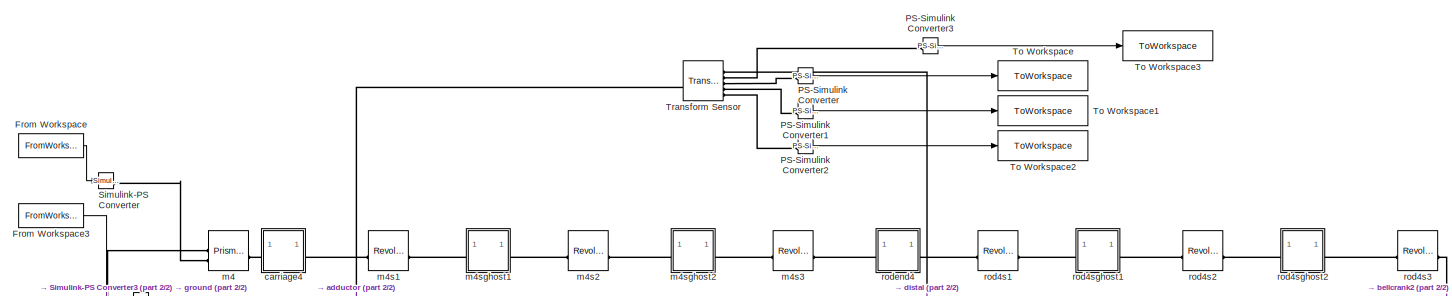
[diagram: root canvas - part 1/2, full width, top band]
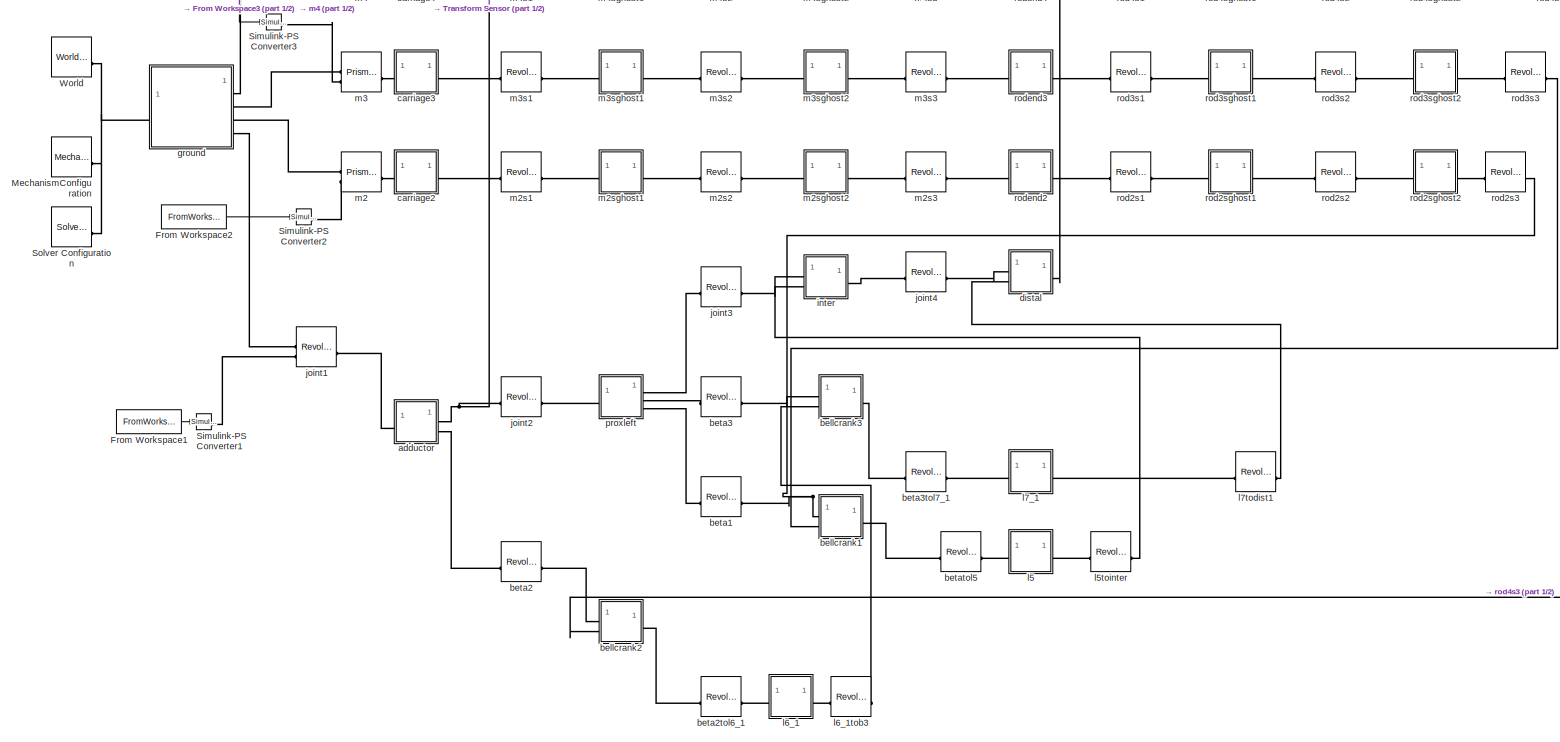
[diagram: root canvas - part 2/2, full width, middle band]
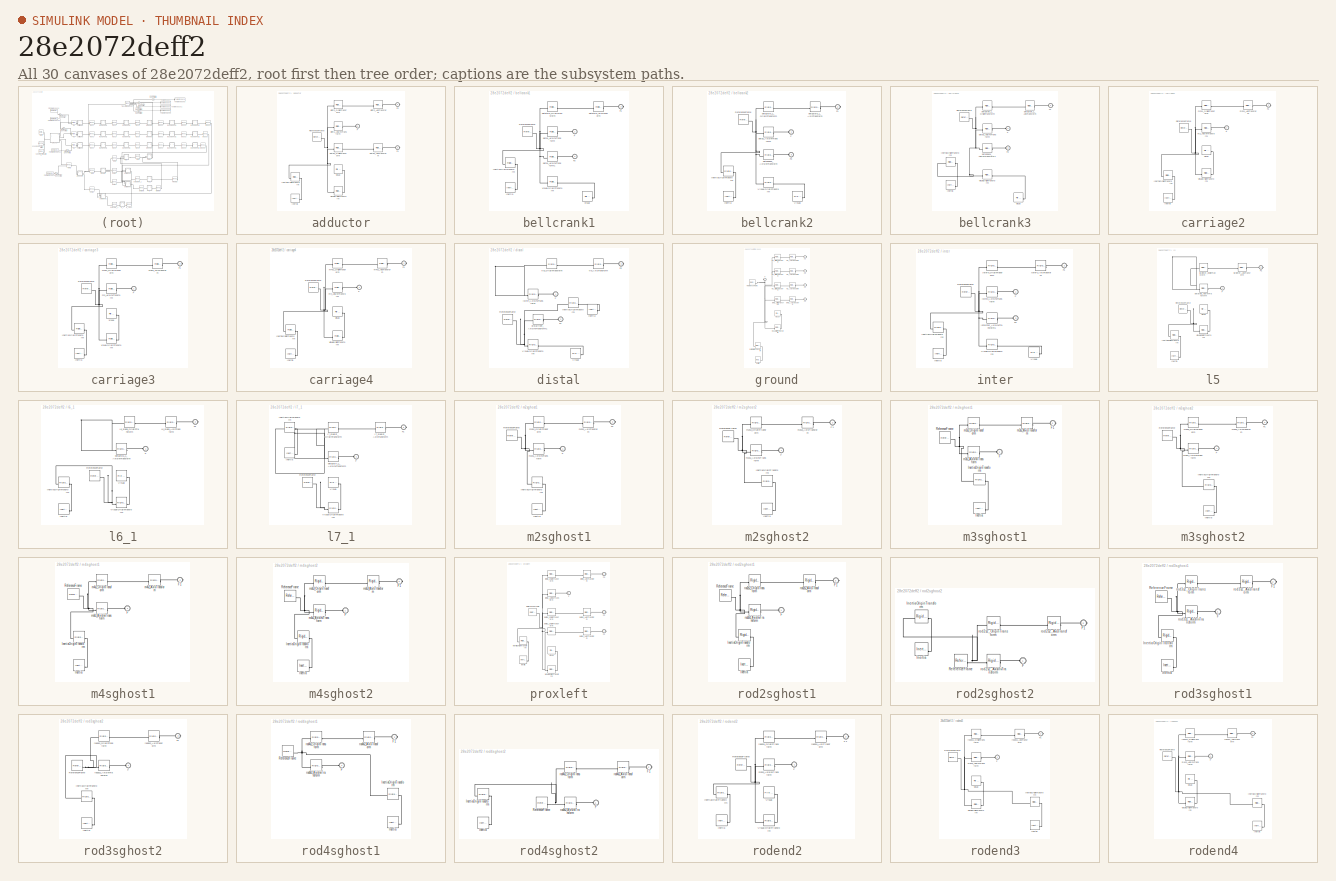
[diagram: thumbnail index - all 30 canvases of the model, root first then tree order]
MODEL slx_28e2072deff2
KIND model
CONFIG AbsTol = auto
CONFIG EnableMultiTasking = off
CONFIG FixedStep = .001
CONFIG MaxStep = auto
CONFIG MinStep = auto
CONFIG RelTol = 1e-3
CONFIG SampleTimeConstraint = Unconstrained
CONFIG SolverName = FixedStepAuto
CONFIG StartTime = 0.0
CONFIG StopTime = total_time
BLOCK [FromWorkspace] From Workspace
  VariableName = m4
BLOCK [FromWorkspace] From Workspace1
  VariableName = m1
BLOCK [FromWorkspace] From Workspace2
  VariableName = m2
BLOCK [FromWorkspace] From Workspace3
  VariableName = m3
BLOCK [Reference] MechanismConfiguration  REF=sm_lib/Utilities/Mechanism
Configuration
  SourceBlock = sm_lib/Utilities/Mechanism\nConfiguration
  SourceType = Mechanism\nConfiguration
BLOCK [Reference] PS-Simulink Converter  REF=nesl_utility/PS-Simulink
Converter
  SourceBlock = nesl_utility/PS-Simulink\nConverter
  SourceType = PS-Simulink\nConverter
BLOCK [Reference] PS-Simulink Converter1  REF=nesl_utility/PS-Simulink
Converter
  SourceBlock = nesl_utility/PS-Simulink\nConverter
  SourceType = PS-Simulink\nConverter
BLOCK [Reference] PS-Simulink Converter2  REF=nesl_utility/PS-Simulink
Converter
  SourceBlock = nesl_utility/PS-Simulink\nConverter
  SourceType = PS-Simulink\nConverter
BLOCK [Reference] PS-Simulink Converter3  REF=nesl_utility/PS-Simulink
Converter
  SourceBlock = nesl_utility/PS-Simulink\nConverter
  SourceType = PS-Simulink\nConverter
BLOCK [Reference] Simulink-PS Converter  REF=nesl_utility/Simulink-PS
Converter
  SourceBlock = nesl_utility/Simulink-PS\nConverter
  SourceType = Simulink-PS\nConverter
BLOCK [Reference] Simulink-PS Converter1  REF=nesl_utility/Simulink-PS
Converter
  SourceBlock = nesl_utility/Simulink-PS\nConverter
  SourceType = Simulink-PS\nConverter
BLOCK [Reference] Simulink-PS Converter2  REF=nesl_utility/Simulink-PS
Converter
  SourceBlock = nesl_utility/Simulink-PS\nConverter
  SourceType = Simulink-PS\nConverter
BLOCK [Reference] Simulink-PS Converter3  REF=nesl_utility/Simulink-PS
Converter
  SourceBlock = nesl_utility/Simulink-PS\nConverter
  SourceType = Simulink-PS\nConverter
BLOCK [Reference] Solver Configuration  REF=nesl_utility/Solver
Configuration
  SourceBlock = nesl_utility/Solver\nConfiguration
  SourceType = Solver\nConfiguration
BLOCK [ToWorkspace] To Workspace
  FixptAsFi = on
  MaxDataPoints = inf
  SampleTime = -1
  SaveFormat = Timeseries
  VariableName = simout
BLOCK [ToWorkspace] To Workspace1
  FixptAsFi = on
  MaxDataPoints = inf
  SampleTime = -1
  SaveFormat = Timeseries
  VariableName = simout1
BLOCK [ToWorkspace] To Workspace2
  FixptAsFi = on
  MaxDataPoints = inf
  SampleTime = -1
  SaveFormat = Timeseries
  VariableName = simout2
BLOCK [ToWorkspace] To Workspace3
  FixptAsFi = on
  MaxDataPoints = inf
  SampleTime = -1
  SaveFormat = Timeseries
  VariableName = simout3
BLOCK [Reference] Transform Sensor  REF=sm_lib/Frames and
Transforms/Transform
Sensor
  SourceBlock = sm_lib/Frames and\nTransforms/Transform\nSensor
  SourceType = Transform\nSensor
BLOCK [Reference] World  REF=sm_lib/Frames and
Transforms/World Frame
  SourceBlock = sm_lib/Frames and\nTransforms/World Frame
  SourceType = World Frame
BLOCK [SubSystem] adductor
BLOCK [PMIOPort] adductor/F
  Side = Left
BLOCK [PMIOPort] adductor/F1
  Port = 3
  Side = Right
BLOCK [PMIOPort] adductor/F2
  Port = 2
  Side = Right
BLOCK [Reference] adductor/Inertia  REF=sm_lib/Body Elements/Inertia
  SourceBlock = sm_lib/Body Elements/Inertia
  SourceType = Inertia
BLOCK [Reference] adductor/InertiaOriginTransform  REF=sm_lib/Frames and
Transforms/Rigid
Transform
  SourceBlock = sm_lib/Frames and\nTransforms/Rigid\nTransform
  SourceType = Rigid\nTransform
BLOCK [Reference] adductor/ReferenceFrame  REF=sm_lib/Frames and
Transforms/Reference
Frame
  SourceBlock = sm_lib/Frames and\nTransforms/Reference\nFrame
  SourceType = Reference\nFrame
BLOCK [Reference] adductor/Visual  REF=sm_lib/Body Elements/File Solid
  SourceBlock = sm_lib/Body Elements/File Solid
  SourceType = File Solid
BLOCK [Reference] adductor/VisualOriginTransform  REF=sm_lib/Frames and
Transforms/Rigid
Transform
  SourceBlock = sm_lib/Frames and\nTransforms/Rigid\nTransform
  SourceType = Rigid\nTransform
BLOCK [Reference] adductor/beta2_AxisTransform  REF=sm_lib/Frames and
Transforms/Rigid
Transform
  SourceBlock = sm_lib/Frames and\nTransforms/Rigid\nTransform
  SourceType = Rigid\nTransform
BLOCK [Reference] adductor/beta2_OriginTransform  REF=sm_lib/Frames and
Transforms/Rigid
Transform
  SourceBlock = sm_lib/Frames and\nTransforms/Rigid\nTransform
  SourceType = Rigid\nTransform
BLOCK [Reference] adductor/joint1_AxisInvTransform  REF=sm_lib/Frames and
Transforms/Rigid
Transform
  SourceBlock = sm_lib/Frames and\nTransforms/Rigid\nTransform
  SourceType = Rigid\nTransform
BLOCK [Reference] adductor/joint2_AxisTransform  REF=sm_lib/Frames and
Transforms/Rigid
Transform
  SourceBlock = sm_lib/Frames and\nTransforms/Rigid\nTransform
  SourceType = Rigid\nTransform
BLOCK [Reference] adductor/joint2_OriginTransform  REF=sm_lib/Frames and
Transforms/Rigid
Transform
  SourceBlock = sm_lib/Frames and\nTransforms/Rigid\nTransform
  SourceType = Rigid\nTransform
BLOCK [SubSystem] bellcrank1
BLOCK [PMIOPort] bellcrank1/F
  Side = Left
BLOCK [PMIOPort] bellcrank1/F1
  Port = 2
  Side = Right
BLOCK [PMIOPort] bellcrank1/F2
  Port = 3
  Side = Left
BLOCK [Reference] bellcrank1/Inertia  REF=sm_lib/Body Elements/Inertia
  SourceBlock = sm_lib/Body Elements/Inertia
  SourceType = Inertia
BLOCK [Reference] bellcrank1/InertiaOriginTransform  REF=sm_lib/Frames and
Transforms/Rigid
Transform
  SourceBlock = sm_lib/Frames and\nTransforms/Rigid\nTransform
  SourceType = Rigid\nTransform
BLOCK [Reference] bellcrank1/ReferenceFrame  REF=sm_lib/Frames and
Transforms/Reference
Frame
  SourceBlock = sm_lib/Frames and\nTransforms/Reference\nFrame
  SourceType = Reference\nFrame
BLOCK [Reference] bellcrank1/Visual  REF=sm_lib/Body Elements/File Solid
  SourceBlock = sm_lib/Body Elements/File Solid
  SourceType = File Solid
BLOCK [Reference] bellcrank1/VisualOriginTransform  REF=sm_lib/Frames and
Transforms/Rigid
Transform
  SourceBlock = sm_lib/Frames and\nTransforms/Rigid\nTransform
  SourceType = Rigid\nTransform
BLOCK [Reference] bellcrank1/beta1_AxisInvTransform  REF=sm_lib/Frames and
Transforms/Rigid
Transform
  SourceBlock = sm_lib/Frames and\nTransforms/Rigid\nTransform
  SourceType = Rigid\nTransform
BLOCK [Reference] bellcrank1/beta1_AxisInvTransform1  REF=sm_lib/Frames and
Transforms/Rigid
Transform
  SourceBlock = sm_lib/Frames and\nTransforms/Rigid\nTransform
  SourceType = Rigid\nTransform
BLOCK [Reference] bellcrank1/betatol5_AxisTransform  REF=sm_lib/Frames and
Transforms/Rigid
Transform
  SourceBlock = sm_lib/Frames and\nTransforms/Rigid\nTransform
  SourceType = Rigid\nTransform
BLOCK [Reference] bellcrank1/betatol5_OriginTransform  REF=sm_lib/Frames and
Transforms/Rigid
Transform
  SourceBlock = sm_lib/Frames and\nTransforms/Rigid\nTransform
  SourceType = Rigid\nTransform
BLOCK [SubSystem] bellcrank2
BLOCK [PMIOPort] bellcrank2/F
  Side = Left
BLOCK [PMIOPort] bellcrank2/F1
  Port = 2
  Side = Right
BLOCK [PMIOPort] bellcrank2/F3
  Port = 3
  Side = Left
BLOCK [Reference] bellcrank2/Inertia  REF=sm_lib/Body Elements/Inertia
  SourceBlock = sm_lib/Body Elements/Inertia
  SourceType = Inertia
BLOCK [Reference] bellcrank2/InertiaOriginTransform  REF=sm_lib/Frames and
Transforms/Rigid
Transform
  SourceBlock = sm_lib/Frames and\nTransforms/Rigid\nTransform
  SourceType = Rigid\nTransform
BLOCK [Reference] bellcrank2/ReferenceFrame  REF=sm_lib/Frames and
Transforms/Reference
Frame
  SourceBlock = sm_lib/Frames and\nTransforms/Reference\nFrame
  SourceType = Reference\nFrame
BLOCK [Reference] bellcrank2/Visual  REF=sm_lib/Body Elements/File Solid
  SourceBlock = sm_lib/Body Elements/File Solid
  SourceType = File Solid
BLOCK [Reference] bellcrank2/VisualOriginTransform  REF=sm_lib/Frames and
Transforms/Rigid
Transform
  SourceBlock = sm_lib/Frames and\nTransforms/Rigid\nTransform
  SourceType = Rigid\nTransform
BLOCK [Reference] bellcrank2/beta2_AxisInvTransform  REF=sm_lib/Frames and
Transforms/Rigid
Transform
  SourceBlock = sm_lib/Frames and\nTransforms/Rigid\nTransform
  SourceType = Rigid\nTransform
BLOCK [Reference] bellcrank2/beta2back_AxisInvTransform  REF=sm_lib/Frames and
Transforms/Rigid
Transform
  SourceBlock = sm_lib/Frames and\nTransforms/Rigid\nTransform
  SourceType = Rigid\nTransform
BLOCK [Reference] bellcrank2/beta2tol6_1_AxisTransform  REF=sm_lib/Frames and
Transforms/Rigid
Transform
  SourceBlock = sm_lib/Frames and\nTransforms/Rigid\nTransform
  SourceType = Rigid\nTransform
BLOCK [Reference] bellcrank2/beta2tol6_1_OriginTransform  REF=sm_lib/Frames and
Transforms/Rigid
Transform
  SourceBlock = sm_lib/Frames and\nTransforms/Rigid\nTransform
  SourceType = Rigid\nTransform
BLOCK [SubSystem] bellcrank3
BLOCK [PMIOPort] bellcrank3/F
  Side = Left
BLOCK [PMIOPort] bellcrank3/F1
  Port = 2
  Side = Right
BLOCK [PMIOPort] bellcrank3/F3
  Port = 3
  Side = Left
BLOCK [Reference] bellcrank3/Inertia  REF=sm_lib/Body Elements/Inertia
  SourceBlock = sm_lib/Body Elements/Inertia
  SourceType = Inertia
BLOCK [Reference] bellcrank3/InertiaOriginTransform  REF=sm_lib/Frames and
Transforms/Rigid
Transform
  SourceBlock = sm_lib/Frames and\nTransforms/Rigid\nTransform
  SourceType = Rigid\nTransform
BLOCK [Reference] bellcrank3/ReferenceFrame  REF=sm_lib/Frames and
Transforms/Reference
Frame
  SourceBlock = sm_lib/Frames and\nTransforms/Reference\nFrame
  SourceType = Reference\nFrame
BLOCK [Reference] bellcrank3/Visual  REF=sm_lib/Body Elements/File Solid
  SourceBlock = sm_lib/Body Elements/File Solid
  SourceType = File Solid
BLOCK [Reference] bellcrank3/VisualOriginTransform  REF=sm_lib/Frames and
Transforms/Rigid
Transform
  SourceBlock = sm_lib/Frames and\nTransforms/Rigid\nTransform
  SourceType = Rigid\nTransform
BLOCK [Reference] bellcrank3/beta3_AxisInvTransform  REF=sm_lib/Frames and
Transforms/Rigid
Transform
  SourceBlock = sm_lib/Frames and\nTransforms/Rigid\nTransform
  SourceType = Rigid\nTransform
BLOCK [Reference] bellcrank3/beta3back_AxisInvTransform1  REF=sm_lib/Frames and
Transforms/Rigid
Transform
  SourceBlock = sm_lib/Frames and\nTransforms/Rigid\nTransform
  SourceType = Rigid\nTransform
BLOCK [Reference] bellcrank3/beta3tol7_1_AxisTransform  REF=sm_lib/Frames and
Transforms/Rigid
Transform
  SourceBlock = sm_lib/Frames and\nTransforms/Rigid\nTransform
  SourceType = Rigid\nTransform
BLOCK [Reference] bellcrank3/beta3tol7_1_OriginTransform  REF=sm_lib/Frames and
Transforms/Rigid
Transform
  SourceBlock = sm_lib/Frames and\nTransforms/Rigid\nTransform
  SourceType = Rigid\nTransform
BLOCK [Reference] beta1  REF=sm_lib/Joints/Revolute Joint
  SourceBlock = sm_lib/Joints/Revolute Joint
  SourceType = Revolute Joint
BLOCK [Reference] beta2  REF=sm_lib/Joints/Revolute Joint
  SourceBlock = sm_lib/Joints/Revolute Joint
  SourceType = Revolute Joint
BLOCK [Reference] beta2tol6_1  REF=sm_lib/Joints/Revolute Joint
  SourceBlock = sm_lib/Joints/Revolute Joint
  SourceType = Revolute Joint
BLOCK [Reference] beta3  REF=sm_lib/Joints/Revolute Joint
  SourceBlock = sm_lib/Joints/Revolute Joint
  SourceType = Revolute Joint
BLOCK [Reference] beta3tol7_1  REF=sm_lib/Joints/Revolute Joint
  SourceBlock = sm_lib/Joints/Revolute Joint
  SourceType = Revolute Joint
BLOCK [Reference] betatol5  REF=sm_lib/Joints/Revolute Joint
  SourceBlock = sm_lib/Joints/Revolute Joint
  SourceType = Revolute Joint
BLOCK [SubSystem] carriage2
BLOCK [PMIOPort] carriage2/F
  Side = Left
BLOCK [PMIOPort] carriage2/F1
  Port = 2
  Side = Right
BLOCK [Reference] carriage2/Inertia  REF=sm_lib/Body Elements/Inertia
  SourceBlock = sm_lib/Body Elements/Inertia
  SourceType = Inertia
BLOCK [Reference] carriage2/InertiaOriginTransform  REF=sm_lib/Frames and
Transforms/Rigid
Transform
  SourceBlock = sm_lib/Frames and\nTransforms/Rigid\nTransform
  SourceType = Rigid\nTransform
BLOCK [Reference] carriage2/ReferenceFrame  REF=sm_lib/Frames and
Transforms/Reference
Frame
  SourceBlock = sm_lib/Frames and\nTransforms/Reference\nFrame
  SourceType = Reference\nFrame
BLOCK [Reference] carriage2/Visual  REF=sm_lib/Body Elements/File Solid
  SourceBlock = sm_lib/Body Elements/File Solid
  SourceType = File Solid
BLOCK [Reference] carriage2/VisualOriginTransform  REF=sm_lib/Frames and
Transforms/Rigid
Transform
  SourceBlock = sm_lib/Frames and\nTransforms/Rigid\nTransform
  SourceType = Rigid\nTransform
BLOCK [Reference] carriage2/m2_AxisInvTransform  REF=sm_lib/Frames and
Transforms/Rigid
Transform
  SourceBlock = sm_lib/Frames and\nTransforms/Rigid\nTransform
  SourceType = Rigid\nTransform
BLOCK [Reference] carriage2/m2s1_AxisTransform  REF=sm_lib/Frames and
Transforms/Rigid
Transform
  SourceBlock = sm_lib/Frames and\nTransforms/Rigid\nTransform
  SourceType = Rigid\nTransform
BLOCK [Reference] carriage2/m2s1_OriginTransform  REF=sm_lib/Frames and
Transforms/Rigid
Transform
  SourceBlock = sm_lib/Frames and\nTransforms/Rigid\nTransform
  SourceType = Rigid\nTransform
BLOCK [SubSystem] carriage3
BLOCK [PMIOPort] carriage3/F
  Side = Left
BLOCK [PMIOPort] carriage3/F1
  Port = 2
  Side = Right
BLOCK [Reference] carriage3/Inertia  REF=sm_lib/Body Elements/Inertia
  SourceBlock = sm_lib/Body Elements/Inertia
  SourceType = Inertia
BLOCK [Reference] carriage3/InertiaOriginTransform  REF=sm_lib/Frames and
Transforms/Rigid
Transform
  SourceBlock = sm_lib/Frames and\nTransforms/Rigid\nTransform
  SourceType = Rigid\nTransform
BLOCK [Reference] carriage3/ReferenceFrame  REF=sm_lib/Frames and
Transforms/Reference
Frame
  SourceBlock = sm_lib/Frames and\nTransforms/Reference\nFrame
  SourceType = Reference\nFrame
BLOCK [Reference] carriage3/Visual  REF=sm_lib/Body Elements/File Solid
  SourceBlock = sm_lib/Body Elements/File Solid
  SourceType = File Solid
BLOCK [Reference] carriage3/VisualOriginTransform  REF=sm_lib/Frames and
Transforms/Rigid
Transform
  SourceBlock = sm_lib/Frames and\nTransforms/Rigid\nTransform
  SourceType = Rigid\nTransform
BLOCK [Reference] carriage3/m3_AxisInvTransform  REF=sm_lib/Frames and
Transforms/Rigid
Transform
  SourceBlock = sm_lib/Frames and\nTransforms/Rigid\nTransform
  SourceType = Rigid\nTransform
BLOCK [Reference] carriage3/m3s1_AxisTransform  REF=sm_lib/Frames and
Transforms/Rigid
Transform
  SourceBlock = sm_lib/Frames and\nTransforms/Rigid\nTransform
  SourceType = Rigid\nTransform
BLOCK [Reference] carriage3/m3s1_OriginTransform  REF=sm_lib/Frames and
Transforms/Rigid
Transform
  SourceBlock = sm_lib/Frames and\nTransforms/Rigid\nTransform
  SourceType = Rigid\nTransform
BLOCK [SubSystem] carriage4
BLOCK [PMIOPort] carriage4/F
  Side = Left
BLOCK [PMIOPort] carriage4/F1
  Port = 2
  Side = Right
BLOCK [Reference] carriage4/Inertia  REF=sm_lib/Body Elements/Inertia
  SourceBlock = sm_lib/Body Elements/Inertia
  SourceType = Inertia
BLOCK [Reference] carriage4/InertiaOriginTransform  REF=sm_lib/Frames and
Transforms/Rigid
Transform
  SourceBlock = sm_lib/Frames and\nTransforms/Rigid\nTransform
  SourceType = Rigid\nTransform
BLOCK [Reference] carriage4/ReferenceFrame  REF=sm_lib/Frames and
Transforms/Reference
Frame
  SourceBlock = sm_lib/Frames and\nTransforms/Reference\nFrame
  SourceType = Reference\nFrame
BLOCK [Reference] carriage4/Visual  REF=sm_lib/Body Elements/File Solid
  SourceBlock = sm_lib/Body Elements/File Solid
  SourceType = File Solid
BLOCK [Reference] carriage4/VisualOriginTransform  REF=sm_lib/Frames and
Transforms/Rigid
Transform
  SourceBlock = sm_lib/Frames and\nTransforms/Rigid\nTransform
  SourceType = Rigid\nTransform
BLOCK [Reference] carriage4/m4_AxisInvTransform  REF=sm_lib/Frames and
Transforms/Rigid
Transform
  SourceBlock = sm_lib/Frames and\nTransforms/Rigid\nTransform
  SourceType = Rigid\nTransform
BLOCK [Reference] carriage4/m4s1_AxisTransform  REF=sm_lib/Frames and
Transforms/Rigid
Transform
  SourceBlock = sm_lib/Frames and\nTransforms/Rigid\nTransform
  SourceType = Rigid\nTransform
BLOCK [Reference] carriage4/m4s1_OriginTransform  REF=sm_lib/Frames and
Transforms/Rigid
Transform
  SourceBlock = sm_lib/Frames and\nTransforms/Rigid\nTransform
  SourceType = Rigid\nTransform
BLOCK [SubSystem] distal
BLOCK [PMIOPort] distal/F
  Side = Left
BLOCK [PMIOPort] distal/F1
  Port = 2
  Side = Left
BLOCK [PMIOPort] distal/F2
  Port = 3
  Side = Right
BLOCK [Reference] distal/Inertia  REF=sm_lib/Body Elements/Inertia
  SourceBlock = sm_lib/Body Elements/Inertia
  SourceType = Inertia
BLOCK [Reference] distal/InertiaOriginTransform  REF=sm_lib/Frames and
Transforms/Rigid
Transform
  SourceBlock = sm_lib/Frames and\nTransforms/Rigid\nTransform
  SourceType = Rigid\nTransform
BLOCK [Reference] distal/ReferenceFrame  REF=sm_lib/Frames and
Transforms/Reference
Frame
  SourceBlock = sm_lib/Frames and\nTransforms/Reference\nFrame
  SourceType = Reference\nFrame
BLOCK [Reference] distal/Visual  REF=sm_lib/Body Elements/File Solid
  SourceBlock = sm_lib/Body Elements/File Solid
  SourceType = File Solid
BLOCK [Reference] distal/VisualOriginTransform  REF=sm_lib/Frames and
Transforms/Rigid
Transform
  SourceBlock = sm_lib/Frames and\nTransforms/Rigid\nTransform
  SourceType = Rigid\nTransform
BLOCK [Reference] distal/distalfront_AxisInvTransform1  REF=sm_lib/Frames and
Transforms/Rigid
Transform
  SourceBlock = sm_lib/Frames and\nTransforms/Rigid\nTransform
  SourceType = Rigid\nTransform
BLOCK [Reference] distal/joint4_AxisInvTransform  REF=sm_lib/Frames and
Transforms/Rigid
Transform
  SourceBlock = sm_lib/Frames and\nTransforms/Rigid\nTransform
  SourceType = Rigid\nTransform
BLOCK [Reference] distal/tip_AxisTransform  REF=sm_lib/Frames and
Transforms/Rigid
Transform
  SourceBlock = sm_lib/Frames and\nTransforms/Rigid\nTransform
  SourceType = Rigid\nTransform
BLOCK [Reference] distal/tip_OriginTransform  REF=sm_lib/Frames and
Transforms/Rigid
Transform
  SourceBlock = sm_lib/Frames and\nTransforms/Rigid\nTransform
  SourceType = Rigid\nTransform
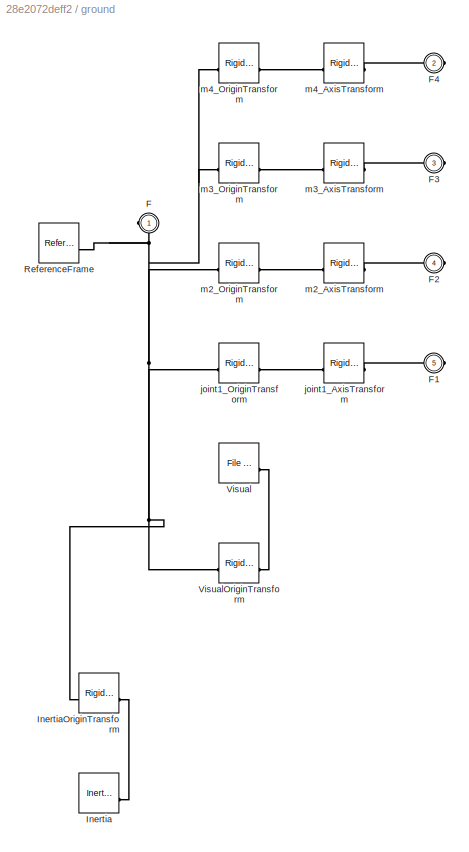
BLOCK [SubSystem] ground
BLOCK [PMIOPort] ground/F
  Side = Left
BLOCK [PMIOPort] ground/F1
  Port = 5
  Side = Right
BLOCK [PMIOPort] ground/F2
  Port = 4
  Side = Right
BLOCK [PMIOPort] ground/F3
  Port = 3
  Side = Right
BLOCK [PMIOPort] ground/F4
  Port = 2
  Side = Right
BLOCK [Reference] ground/Inertia  REF=sm_lib/Body Elements/Inertia
  SourceBlock = sm_lib/Body Elements/Inertia
  SourceType = Inertia
BLOCK [Reference] ground/InertiaOriginTransform  REF=sm_lib/Frames and
Transforms/Rigid
Transform
  SourceBlock = sm_lib/Frames and\nTransforms/Rigid\nTransform
  SourceType = Rigid\nTransform
BLOCK [Reference] ground/ReferenceFrame  REF=sm_lib/Frames and
Transforms/Reference
Frame
  SourceBlock = sm_lib/Frames and\nTransforms/Reference\nFrame
  SourceType = Reference\nFrame
BLOCK [Reference] ground/Visual  REF=sm_lib/Body Elements/File Solid
  SourceBlock = sm_lib/Body Elements/File Solid
  SourceType = File Solid
BLOCK [Reference] ground/VisualOriginTransform  REF=sm_lib/Frames and
Transforms/Rigid
Transform
  SourceBlock = sm_lib/Frames and\nTransforms/Rigid\nTransform
  SourceType = Rigid\nTransform
BLOCK [Reference] ground/joint1_AxisTransform  REF=sm_lib/Frames and
Transforms/Rigid
Transform
  SourceBlock = sm_lib/Frames and\nTransforms/Rigid\nTransform
  SourceType = Rigid\nTransform
BLOCK [Reference] ground/joint1_OriginTransform  REF=sm_lib/Frames and
Transforms/Rigid
Transform
  SourceBlock = sm_lib/Frames and\nTransforms/Rigid\nTransform
  SourceType = Rigid\nTransform
BLOCK [Reference] ground/m2_AxisTransform  REF=sm_lib/Frames and
Transforms/Rigid
Transform
  SourceBlock = sm_lib/Frames and\nTransforms/Rigid\nTransform
  SourceType = Rigid\nTransform
BLOCK [Reference] ground/m2_OriginTransform  REF=sm_lib/Frames and
Transforms/Rigid
Transform
  SourceBlock = sm_lib/Frames and\nTransforms/Rigid\nTransform
  SourceType = Rigid\nTransform
BLOCK [Reference] ground/m3_AxisTransform  REF=sm_lib/Frames and
Transforms/Rigid
Transform
  SourceBlock = sm_lib/Frames and\nTransforms/Rigid\nTransform
  SourceType = Rigid\nTransform
BLOCK [Reference] ground/m3_OriginTransform  REF=sm_lib/Frames and
Transforms/Rigid
Transform
  SourceBlock = sm_lib/Frames and\nTransforms/Rigid\nTransform
  SourceType = Rigid\nTransform
BLOCK [Reference] ground/m4_AxisTransform  REF=sm_lib/Frames and
Transforms/Rigid
Transform
  SourceBlock = sm_lib/Frames and\nTransforms/Rigid\nTransform
  SourceType = Rigid\nTransform
BLOCK [Reference] ground/m4_OriginTransform  REF=sm_lib/Frames and
Transforms/Rigid
Transform
  SourceBlock = sm_lib/Frames and\nTransforms/Rigid\nTransform
  SourceType = Rigid\nTransform
BLOCK [SubSystem] inter
BLOCK [PMIOPort] inter/F
  Side = Left
BLOCK [PMIOPort] inter/F1
  Port = 2
  Side = Right
BLOCK [PMIOPort] inter/F2
  Port = 3
  Side = Left
BLOCK [Reference] inter/Inertia  REF=sm_lib/Body Elements/Inertia
  SourceBlock = sm_lib/Body Elements/Inertia
  SourceType = Inertia
BLOCK [Reference] inter/InertiaOriginTransform  REF=sm_lib/Frames and
Transforms/Rigid
Transform
  SourceBlock = sm_lib/Frames and\nTransforms/Rigid\nTransform
  SourceType = Rigid\nTransform
BLOCK [Reference] inter/ReferenceFrame  REF=sm_lib/Frames and
Transforms/Reference
Frame
  SourceBlock = sm_lib/Frames and\nTransforms/Reference\nFrame
  SourceType = Reference\nFrame
BLOCK [Reference] inter/Visual  REF=sm_lib/Body Elements/File Solid
  SourceBlock = sm_lib/Body Elements/File Solid
  SourceType = File Solid
BLOCK [Reference] inter/VisualOriginTransform  REF=sm_lib/Frames and
Transforms/Rigid
Transform
  SourceBlock = sm_lib/Frames and\nTransforms/Rigid\nTransform
  SourceType = Rigid\nTransform
BLOCK [Reference] inter/joint3_AxisInvTransform  REF=sm_lib/Frames and
Transforms/Rigid
Transform
  SourceBlock = sm_lib/Frames and\nTransforms/Rigid\nTransform
  SourceType = Rigid\nTransform
BLOCK [Reference] inter/joint4_AxisTransform  REF=sm_lib/Frames and
Transforms/Rigid
Transform
  SourceBlock = sm_lib/Frames and\nTransforms/Rigid\nTransform
  SourceType = Rigid\nTransform
BLOCK [Reference] inter/joint4_OriginTransform  REF=sm_lib/Frames and
Transforms/Rigid
Transform
  SourceBlock = sm_lib/Frames and\nTransforms/Rigid\nTransform
  SourceType = Rigid\nTransform
BLOCK [Reference] inter/l5tointer_AxisInvTransform1  REF=sm_lib/Frames and
Transforms/Rigid
Transform
  SourceBlock = sm_lib/Frames and\nTransforms/Rigid\nTransform
  SourceType = Rigid\nTransform
BLOCK [Reference] joint1  REF=sm_lib/Joints/Revolute Joint
  SourceBlock = sm_lib/Joints/Revolute Joint
  SourceType = Revolute Joint
BLOCK [Reference] joint2  REF=sm_lib/Joints/Revolute Joint
  SourceBlock = sm_lib/Joints/Revolute Joint
  SourceType = Revolute Joint
BLOCK [Reference] joint3  REF=sm_lib/Joints/Revolute Joint
  SourceBlock = sm_lib/Joints/Revolute Joint
  SourceType = Revolute Joint
BLOCK [Reference] joint4  REF=sm_lib/Joints/Revolute Joint
  SourceBlock = sm_lib/Joints/Revolute Joint
  SourceType = Revolute Joint
BLOCK [SubSystem] l5
BLOCK [PMIOPort] l5/F
  Side = Left
BLOCK [PMIOPort] l5/F1
  Port = 2
  Side = Right
BLOCK [Reference] l5/Inertia  REF=sm_lib/Body Elements/Inertia
  SourceBlock = sm_lib/Body Elements/Inertia
  SourceType = Inertia
BLOCK [Reference] l5/InertiaOriginTransform  REF=sm_lib/Frames and
Transforms/Rigid
Transform
  SourceBlock = sm_lib/Frames and\nTransforms/Rigid\nTransform
  SourceType = Rigid\nTransform
BLOCK [Reference] l5/ReferenceFrame  REF=sm_lib/Frames and
Transforms/Reference
Frame
  SourceBlock = sm_lib/Frames and\nTransforms/Reference\nFrame
  SourceType = Reference\nFrame
BLOCK [Reference] l5/Visual  REF=sm_lib/Body Elements/File Solid
  SourceBlock = sm_lib/Body Elements/File Solid
  SourceType = File Solid
BLOCK [Reference] l5/VisualOriginTransform  REF=sm_lib/Frames and
Transforms/Rigid
Transform
  SourceBlock = sm_lib/Frames and\nTransforms/Rigid\nTransform
  SourceType = Rigid\nTransform
BLOCK [Reference] l5/betatol5_AxisInvTransform  REF=sm_lib/Frames and
Transforms/Rigid
Transform
  SourceBlock = sm_lib/Frames and\nTransforms/Rigid\nTransform
  SourceType = Rigid\nTransform
BLOCK [Reference] l5/l5tointer_AxisTransform  REF=sm_lib/Frames and
Transforms/Rigid
Transform
  SourceBlock = sm_lib/Frames and\nTransforms/Rigid\nTransform
  SourceType = Rigid\nTransform
BLOCK [Reference] l5/l5tointer_OriginTransform  REF=sm_lib/Frames and
Transforms/Rigid
Transform
  SourceBlock = sm_lib/Frames and\nTransforms/Rigid\nTransform
  SourceType = Rigid\nTransform
BLOCK [Reference] l5tointer  REF=sm_lib/Joints/Revolute Joint
  SourceBlock = sm_lib/Joints/Revolute Joint
  SourceType = Revolute Joint
BLOCK [SubSystem] l6_1
BLOCK [PMIOPort] l6_1/F
  Side = Left
BLOCK [PMIOPort] l6_1/F1
  Port = 2
  Side = Right
BLOCK [Reference] l6_1/Inertia  REF=sm_lib/Body Elements/Inertia
  SourceBlock = sm_lib/Body Elements/Inertia
  SourceType = Inertia
BLOCK [Reference] l6_1/InertiaOriginTransform  REF=sm_lib/Frames and
Transforms/Rigid
Transform
  SourceBlock = sm_lib/Frames and\nTransforms/Rigid\nTransform
  SourceType = Rigid\nTransform
BLOCK [Reference] l6_1/ReferenceFrame  REF=sm_lib/Frames and
Transforms/Reference
Frame
  SourceBlock = sm_lib/Frames and\nTransforms/Reference\nFrame
  SourceType = Reference\nFrame
BLOCK [Reference] l6_1/Visual  REF=sm_lib/Body Elements/File Solid
  SourceBlock = sm_lib/Body Elements/File Solid
  SourceType = File Solid
BLOCK [Reference] l6_1/VisualOriginTransform  REF=sm_lib/Frames and
Transforms/Rigid
Transform
  SourceBlock = sm_lib/Frames and\nTransforms/Rigid\nTransform
  SourceType = Rigid\nTransform
BLOCK [Reference] l6_1/beta2tol6_1_AxisInvTransform  REF=sm_lib/Frames and
Transforms/Rigid
Transform
  SourceBlock = sm_lib/Frames and\nTransforms/Rigid\nTransform
  SourceType = Rigid\nTransform
BLOCK [Reference] l6_1/l6_1tob3_AxisTransform  REF=sm_lib/Frames and
Transforms/Rigid
Transform
  SourceBlock = sm_lib/Frames and\nTransforms/Rigid\nTransform
  SourceType = Rigid\nTransform
BLOCK [Reference] l6_1/l6_1tob3_OriginTransform  REF=sm_lib/Frames and
Transforms/Rigid
Transform
  SourceBlock = sm_lib/Frames and\nTransforms/Rigid\nTransform
  SourceType = Rigid\nTransform
BLOCK [Reference] l6_1tob3  REF=sm_lib/Joints/Revolute Joint
  SourceBlock = sm_lib/Joints/Revolute Joint
  SourceType = Revolute Joint
BLOCK [SubSystem] l7_1
BLOCK [PMIOPort] l7_1/F
  Side = Left
BLOCK [PMIOPort] l7_1/F1
  Port = 2
  Side = Right
BLOCK [Reference] l7_1/Inertia  REF=sm_lib/Body Elements/Inertia
  SourceBlock = sm_lib/Body Elements/Inertia
  SourceType = Inertia
BLOCK [Reference] l7_1/InertiaOriginTransform  REF=sm_lib/Frames and
Transforms/Rigid
Transform
  SourceBlock = sm_lib/Frames and\nTransforms/Rigid\nTransform
  SourceType = Rigid\nTransform
BLOCK [Reference] l7_1/ReferenceFrame  REF=sm_lib/Frames and
Transforms/Reference
Frame
  SourceBlock = sm_lib/Frames and\nTransforms/Reference\nFrame
  SourceType = Reference\nFrame
BLOCK [Reference] l7_1/Visual  REF=sm_lib/Body Elements/File Solid
  SourceBlock = sm_lib/Body Elements/File Solid
  SourceType = File Solid
BLOCK [Reference] l7_1/VisualOriginTransform  REF=sm_lib/Frames and
Transforms/Rigid
Transform
  SourceBlock = sm_lib/Frames and\nTransforms/Rigid\nTransform
  SourceType = Rigid\nTransform
BLOCK [Reference] l7_1/beta3tol7_1_AxisInvTransform  REF=sm_lib/Frames and
Transforms/Rigid
Transform
  SourceBlock = sm_lib/Frames and\nTransforms/Rigid\nTransform
  SourceType = Rigid\nTransform
BLOCK [Reference] l7_1/l7_1todist_AxisTransform  REF=sm_lib/Frames and
Transforms/Rigid
Transform
  SourceBlock = sm_lib/Frames and\nTransforms/Rigid\nTransform
  SourceType = Rigid\nTransform
BLOCK [Reference] l7_1/l7_1todist_OriginTransform  REF=sm_lib/Frames and
Transforms/Rigid
Transform
  SourceBlock = sm_lib/Frames and\nTransforms/Rigid\nTransform
  SourceType = Rigid\nTransform
BLOCK [Reference] l7todist1  REF=sm_lib/Joints/Revolute Joint
  SourceBlock = sm_lib/Joints/Revolute Joint
  SourceType = Revolute Joint
BLOCK [Reference] m2  REF=sm_lib/Joints/Prismatic
Joint
  SourceBlock = sm_lib/Joints/Prismatic\nJoint
  SourceType = Prismatic\nJoint
BLOCK [Reference] m2s1  REF=sm_lib/Joints/Revolute Joint
  SourceBlock = sm_lib/Joints/Revolute Joint
  SourceType = Revolute Joint
BLOCK [Reference] m2s2  REF=sm_lib/Joints/Revolute Joint
  SourceBlock = sm_lib/Joints/Revolute Joint
  SourceType = Revolute Joint
BLOCK [Reference] m2s3  REF=sm_lib/Joints/Revolute Joint
  SourceBlock = sm_lib/Joints/Revolute Joint
  SourceType = Revolute Joint
BLOCK [SubSystem] m2sghost1
BLOCK [PMIOPort] m2sghost1/F
  Side = Left
BLOCK [PMIOPort] m2sghost1/F1
  Port = 2
  Side = Right
BLOCK [Reference] m2sghost1/Inertia  REF=sm_lib/Body Elements/Inertia
  SourceBlock = sm_lib/Body Elements/Inertia
  SourceType = Inertia
BLOCK [Reference] m2sghost1/InertiaOriginTransform  REF=sm_lib/Frames and
Transforms/Rigid
Transform
  SourceBlock = sm_lib/Frames and\nTransforms/Rigid\nTransform
  SourceType = Rigid\nTransform
BLOCK [Reference] m2sghost1/ReferenceFrame  REF=sm_lib/Frames and
Transforms/Reference
Frame
  SourceBlock = sm_lib/Frames and\nTransforms/Reference\nFrame
  SourceType = Reference\nFrame
BLOCK [Reference] m2sghost1/m2s1_AxisInvTransform  REF=sm_lib/Frames and
Transforms/Rigid
Transform
  SourceBlock = sm_lib/Frames and\nTransforms/Rigid\nTransform
  SourceType = Rigid\nTransform
BLOCK [Reference] m2sghost1/m2s2_AxisTransform  REF=sm_lib/Frames and
Transforms/Rigid
Transform
  SourceBlock = sm_lib/Frames and\nTransforms/Rigid\nTransform
  SourceType = Rigid\nTransform
BLOCK [Reference] m2sghost1/m2s2_OriginTransform  REF=sm_lib/Frames and
Transforms/Rigid
Transform
  SourceBlock = sm_lib/Frames and\nTransforms/Rigid\nTransform
  SourceType = Rigid\nTransform
BLOCK [SubSystem] m2sghost2
BLOCK [PMIOPort] m2sghost2/F
  Side = Left
BLOCK [PMIOPort] m2sghost2/F1
  Port = 2
  Side = Right
BLOCK [Reference] m2sghost2/Inertia  REF=sm_lib/Body Elements/Inertia
  SourceBlock = sm_lib/Body Elements/Inertia
  SourceType = Inertia
BLOCK [Reference] m2sghost2/InertiaOriginTransform  REF=sm_lib/Frames and
Transforms/Rigid
Transform
  SourceBlock = sm_lib/Frames and\nTransforms/Rigid\nTransform
  SourceType = Rigid\nTransform
BLOCK [Reference] m2sghost2/ReferenceFrame  REF=sm_lib/Frames and
Transforms/Reference
Frame
  SourceBlock = sm_lib/Frames and\nTransforms/Reference\nFrame
  SourceType = Reference\nFrame
BLOCK [Reference] m2sghost2/m2s2_AxisInvTransform  REF=sm_lib/Frames and
Transforms/Rigid
Transform
  SourceBlock = sm_lib/Frames and\nTransforms/Rigid\nTransform
  SourceType = Rigid\nTransform
BLOCK [Reference] m2sghost2/m2s3_AxisTransform  REF=sm_lib/Frames and
Transforms/Rigid
Transform
  SourceBlock = sm_lib/Frames and\nTransforms/Rigid\nTransform
  SourceType = Rigid\nTransform
BLOCK [Reference] m2sghost2/m2s3_OriginTransform  REF=sm_lib/Frames and
Transforms/Rigid
Transform
  SourceBlock = sm_lib/Frames and\nTransforms/Rigid\nTransform
  SourceType = Rigid\nTransform
BLOCK [Reference] m3  REF=sm_lib/Joints/Prismatic
Joint
  SourceBlock = sm_lib/Joints/Prismatic\nJoint
  SourceType = Prismatic\nJoint
BLOCK [Reference] m3s1  REF=sm_lib/Joints/Revolute Joint
  SourceBlock = sm_lib/Joints/Revolute Joint
  SourceType = Revolute Joint
BLOCK [Reference] m3s2  REF=sm_lib/Joints/Revolute Joint
  SourceBlock = sm_lib/Joints/Revolute Joint
  SourceType = Revolute Joint
BLOCK [Reference] m3s3  REF=sm_lib/Joints/Revolute Joint
  SourceBlock = sm_lib/Joints/Revolute Joint
  SourceType = Revolute Joint
BLOCK [SubSystem] m3sghost1
BLOCK [PMIOPort] m3sghost1/F
  Side = Left
BLOCK [PMIOPort] m3sghost1/F1
  Port = 2
  Side = Right
BLOCK [Reference] m3sghost1/Inertia  REF=sm_lib/Body Elements/Inertia
  SourceBlock = sm_lib/Body Elements/Inertia
  SourceType = Inertia
BLOCK [Reference] m3sghost1/InertiaOriginTransform  REF=sm_lib/Frames and
Transforms/Rigid
Transform
  SourceBlock = sm_lib/Frames and\nTransforms/Rigid\nTransform
  SourceType = Rigid\nTransform
BLOCK [Reference] m3sghost1/ReferenceFrame  REF=sm_lib/Frames and
Transforms/Reference
Frame
  SourceBlock = sm_lib/Frames and\nTransforms/Reference\nFrame
  SourceType = Reference\nFrame
BLOCK [Reference] m3sghost1/m3s1_AxisInvTransform  REF=sm_lib/Frames and
Transforms/Rigid
Transform
  SourceBlock = sm_lib/Frames and\nTransforms/Rigid\nTransform
  SourceType = Rigid\nTransform
BLOCK [Reference] m3sghost1/m3s2_AxisTransform  REF=sm_lib/Frames and
Transforms/Rigid
Transform
  SourceBlock = sm_lib/Frames and\nTransforms/Rigid\nTransform
  SourceType = Rigid\nTransform
BLOCK [Reference] m3sghost1/m3s2_OriginTransform  REF=sm_lib/Frames and
Transforms/Rigid
Transform
  SourceBlock = sm_lib/Frames and\nTransforms/Rigid\nTransform
  SourceType = Rigid\nTransform
BLOCK [SubSystem] m3sghost2
BLOCK [PMIOPort] m3sghost2/F
  Side = Left
BLOCK [PMIOPort] m3sghost2/F1
  Port = 2
  Side = Right
BLOCK [Reference] m3sghost2/Inertia  REF=sm_lib/Body Elements/Inertia
  SourceBlock = sm_lib/Body Elements/Inertia
  SourceType = Inertia
BLOCK [Reference] m3sghost2/InertiaOriginTransform  REF=sm_lib/Frames and
Transforms/Rigid
Transform
  SourceBlock = sm_lib/Frames and\nTransforms/Rigid\nTransform
  SourceType = Rigid\nTransform
BLOCK [Reference] m3sghost2/ReferenceFrame  REF=sm_lib/Frames and
Transforms/Reference
Frame
  SourceBlock = sm_lib/Frames and\nTransforms/Reference\nFrame
  SourceType = Reference\nFrame
BLOCK [Reference] m3sghost2/m3s2_AxisInvTransform  REF=sm_lib/Frames and
Transforms/Rigid
Transform
  SourceBlock = sm_lib/Frames and\nTransforms/Rigid\nTransform
  SourceType = Rigid\nTransform
BLOCK [Reference] m3sghost2/m3s3_AxisTransform  REF=sm_lib/Frames and
Transforms/Rigid
Transform
  SourceBlock = sm_lib/Frames and\nTransforms/Rigid\nTransform
  SourceType = Rigid\nTransform
BLOCK [Reference] m3sghost2/m3s3_OriginTransform  REF=sm_lib/Frames and
Transforms/Rigid
Transform
  SourceBlock = sm_lib/Frames and\nTransforms/Rigid\nTransform
  SourceType = Rigid\nTransform
BLOCK [Reference] m4  REF=sm_lib/Joints/Prismatic
Joint
  SourceBlock = sm_lib/Joints/Prismatic\nJoint
  SourceType = Prismatic\nJoint
BLOCK [Reference] m4s1  REF=sm_lib/Joints/Revolute Joint
  SourceBlock = sm_lib/Joints/Revolute Joint
  SourceType = Revolute Joint
BLOCK [Reference] m4s2  REF=sm_lib/Joints/Revolute Joint
  SourceBlock = sm_lib/Joints/Revolute Joint
  SourceType = Revolute Joint
BLOCK [Reference] m4s3  REF=sm_lib/Joints/Revolute Joint
  SourceBlock = sm_lib/Joints/Revolute Joint
  SourceType = Revolute Joint
BLOCK [SubSystem] m4sghost1
BLOCK [PMIOPort] m4sghost1/F
  Side = Left
BLOCK [PMIOPort] m4sghost1/F1
  Port = 2
  Side = Right
BLOCK [Reference] m4sghost1/Inertia  REF=sm_lib/Body Elements/Inertia
  SourceBlock = sm_lib/Body Elements/Inertia
  SourceType = Inertia
BLOCK [Reference] m4sghost1/InertiaOriginTransform  REF=sm_lib/Frames and
Transforms/Rigid
Transform
  SourceBlock = sm_lib/Frames and\nTransforms/Rigid\nTransform
  SourceType = Rigid\nTransform
BLOCK [Reference] m4sghost1/ReferenceFrame  REF=sm_lib/Frames and
Transforms/Reference
Frame
  SourceBlock = sm_lib/Frames and\nTransforms/Reference\nFrame
  SourceType = Reference\nFrame
BLOCK [Reference] m4sghost1/m4s1_AxisInvTransform  REF=sm_lib/Frames and
Transforms/Rigid
Transform
  SourceBlock = sm_lib/Frames and\nTransforms/Rigid\nTransform
  SourceType = Rigid\nTransform
BLOCK [Reference] m4sghost1/m4s2_AxisTransform  REF=sm_lib/Frames and
Transforms/Rigid
Transform
  SourceBlock = sm_lib/Frames and\nTransforms/Rigid\nTransform
  SourceType = Rigid\nTransform
BLOCK [Reference] m4sghost1/m4s2_OriginTransform  REF=sm_lib/Frames and
Transforms/Rigid
Transform
  SourceBlock = sm_lib/Frames and\nTransforms/Rigid\nTransform
  SourceType = Rigid\nTransform
BLOCK [SubSystem] m4sghost2
BLOCK [PMIOPort] m4sghost2/F
  Side = Left
BLOCK [PMIOPort] m4sghost2/F1
  Port = 2
  Side = Right
BLOCK [Reference] m4sghost2/Inertia  REF=sm_lib/Body Elements/Inertia
  SourceBlock = sm_lib/Body Elements/Inertia
  SourceType = Inertia
BLOCK [Reference] m4sghost2/InertiaOriginTransform  REF=sm_lib/Frames and
Transforms/Rigid
Transform
  SourceBlock = sm_lib/Frames and\nTransforms/Rigid\nTransform
  SourceType = Rigid\nTransform
BLOCK [Reference] m4sghost2/ReferenceFrame  REF=sm_lib/Frames and
Transforms/Reference
Frame
  SourceBlock = sm_lib/Frames and\nTransforms/Reference\nFrame
  SourceType = Reference\nFrame
BLOCK [Reference] m4sghost2/m4s2_AxisInvTransform  REF=sm_lib/Frames and
Transforms/Rigid
Transform
  SourceBlock = sm_lib/Frames and\nTransforms/Rigid\nTransform
  SourceType = Rigid\nTransform
BLOCK [Reference] m4sghost2/m4s3_AxisTransform  REF=sm_lib/Frames and
Transforms/Rigid
Transform
  SourceBlock = sm_lib/Frames and\nTransforms/Rigid\nTransform
  SourceType = Rigid\nTransform
BLOCK [Reference] m4sghost2/m4s3_OriginTransform  REF=sm_lib/Frames and
Transforms/Rigid
Transform
  SourceBlock = sm_lib/Frames and\nTransforms/Rigid\nTransform
  SourceType = Rigid\nTransform
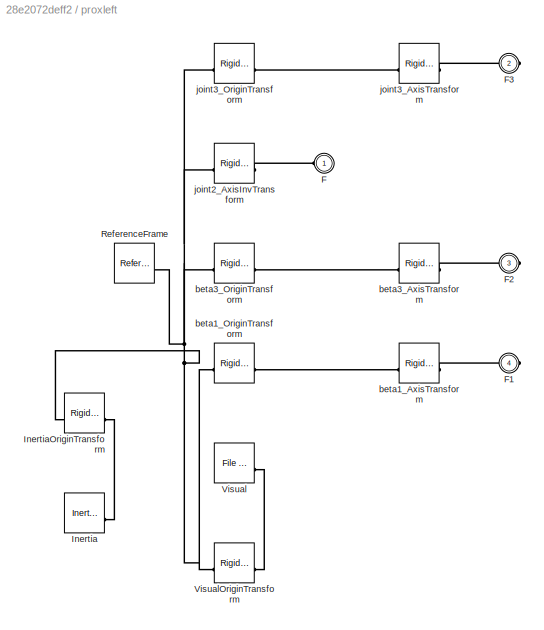
BLOCK [SubSystem] proxleft
BLOCK [PMIOPort] proxleft/F
  Side = Left
BLOCK [PMIOPort] proxleft/F1
  Port = 4
  Side = Right
BLOCK [PMIOPort] proxleft/F2
  Port = 3
  Side = Right
BLOCK [PMIOPort] proxleft/F3
  Port = 2
  Side = Right
BLOCK [Reference] proxleft/Inertia  REF=sm_lib/Body Elements/Inertia
  SourceBlock = sm_lib/Body Elements/Inertia
  SourceType = Inertia
BLOCK [Reference] proxleft/InertiaOriginTransform  REF=sm_lib/Frames and
Transforms/Rigid
Transform
  SourceBlock = sm_lib/Frames and\nTransforms/Rigid\nTransform
  SourceType = Rigid\nTransform
BLOCK [Reference] proxleft/ReferenceFrame  REF=sm_lib/Frames and
Transforms/Reference
Frame
  SourceBlock = sm_lib/Frames and\nTransforms/Reference\nFrame
  SourceType = Reference\nFrame
BLOCK [Reference] proxleft/Visual  REF=sm_lib/Body Elements/File Solid
  SourceBlock = sm_lib/Body Elements/File Solid
  SourceType = File Solid
BLOCK [Reference] proxleft/VisualOriginTransform  REF=sm_lib/Frames and
Transforms/Rigid
Transform
  SourceBlock = sm_lib/Frames and\nTransforms/Rigid\nTransform
  SourceType = Rigid\nTransform
BLOCK [Reference] proxleft/beta1_AxisTransform  REF=sm_lib/Frames and
Transforms/Rigid
Transform
  SourceBlock = sm_lib/Frames and\nTransforms/Rigid\nTransform
  SourceType = Rigid\nTransform
BLOCK [Reference] proxleft/beta1_OriginTransform  REF=sm_lib/Frames and
Transforms/Rigid
Transform
  SourceBlock = sm_lib/Frames and\nTransforms/Rigid\nTransform
  SourceType = Rigid\nTransform
BLOCK [Reference] proxleft/beta3_AxisTransform  REF=sm_lib/Frames and
Transforms/Rigid
Transform
  SourceBlock = sm_lib/Frames and\nTransforms/Rigid\nTransform
  SourceType = Rigid\nTransform
BLOCK [Reference] proxleft/beta3_OriginTransform  REF=sm_lib/Frames and
Transforms/Rigid
Transform
  SourceBlock = sm_lib/Frames and\nTransforms/Rigid\nTransform
  SourceType = Rigid\nTransform
BLOCK [Reference] proxleft/joint2_AxisInvTransform  REF=sm_lib/Frames and
Transforms/Rigid
Transform
  SourceBlock = sm_lib/Frames and\nTransforms/Rigid\nTransform
  SourceType = Rigid\nTransform
BLOCK [Reference] proxleft/joint3_AxisTransform  REF=sm_lib/Frames and
Transforms/Rigid
Transform
  SourceBlock = sm_lib/Frames and\nTransforms/Rigid\nTransform
  SourceType = Rigid\nTransform
BLOCK [Reference] proxleft/joint3_OriginTransform  REF=sm_lib/Frames and
Transforms/Rigid
Transform
  SourceBlock = sm_lib/Frames and\nTransforms/Rigid\nTransform
  SourceType = Rigid\nTransform
BLOCK [Reference] rod2s1  REF=sm_lib/Joints/Revolute Joint
  SourceBlock = sm_lib/Joints/Revolute Joint
  SourceType = Revolute Joint
BLOCK [Reference] rod2s2  REF=sm_lib/Joints/Revolute Joint
  SourceBlock = sm_lib/Joints/Revolute Joint
  SourceType = Revolute Joint
BLOCK [Reference] rod2s3  REF=sm_lib/Joints/Revolute Joint
  SourceBlock = sm_lib/Joints/Revolute Joint
  SourceType = Revolute Joint
BLOCK [SubSystem] rod2sghost1
BLOCK [PMIOPort] rod2sghost1/F
  Side = Left
BLOCK [PMIOPort] rod2sghost1/F1
  Port = 2
  Side = Right
BLOCK [Reference] rod2sghost1/Inertia  REF=sm_lib/Body Elements/Inertia
  SourceBlock = sm_lib/Body Elements/Inertia
  SourceType = Inertia
BLOCK [Reference] rod2sghost1/InertiaOriginTransform  REF=sm_lib/Frames and
Transforms/Rigid
Transform
  SourceBlock = sm_lib/Frames and\nTransforms/Rigid\nTransform
  SourceType = Rigid\nTransform
BLOCK [Reference] rod2sghost1/ReferenceFrame  REF=sm_lib/Frames and
Transforms/Reference
Frame
  SourceBlock = sm_lib/Frames and\nTransforms/Reference\nFrame
  SourceType = Reference\nFrame
BLOCK [Reference] rod2sghost1/rod2s1_AxisInvTransform  REF=sm_lib/Frames and
Transforms/Rigid
Transform
  SourceBlock = sm_lib/Frames and\nTransforms/Rigid\nTransform
  SourceType = Rigid\nTransform
BLOCK [Reference] rod2sghost1/rod2s2_AxisTransform  REF=sm_lib/Frames and
Transforms/Rigid
Transform
  SourceBlock = sm_lib/Frames and\nTransforms/Rigid\nTransform
  SourceType = Rigid\nTransform
BLOCK [Reference] rod2sghost1/rod2s2_OriginTransform  REF=sm_lib/Frames and
Transforms/Rigid
Transform
  SourceBlock = sm_lib/Frames and\nTransforms/Rigid\nTransform
  SourceType = Rigid\nTransform
BLOCK [SubSystem] rod2sghost2
BLOCK [PMIOPort] rod2sghost2/F
  Side = Left
BLOCK [PMIOPort] rod2sghost2/F1
  Port = 2
  Side = Right
BLOCK [Reference] rod2sghost2/Inertia  REF=sm_lib/Body Elements/Inertia
  SourceBlock = sm_lib/Body Elements/Inertia
  SourceType = Inertia
BLOCK [Reference] rod2sghost2/InertiaOriginTransform  REF=sm_lib/Frames and
Transforms/Rigid
Transform
  SourceBlock = sm_lib/Frames and\nTransforms/Rigid\nTransform
  SourceType = Rigid\nTransform
BLOCK [Reference] rod2sghost2/ReferenceFrame  REF=sm_lib/Frames and
Transforms/Reference
Frame
  SourceBlock = sm_lib/Frames and\nTransforms/Reference\nFrame
  SourceType = Reference\nFrame
BLOCK [Reference] rod2sghost2/rod2s2_AxisInvTransform  REF=sm_lib/Frames and
Transforms/Rigid
Transform
  SourceBlock = sm_lib/Frames and\nTransforms/Rigid\nTransform
  SourceType = Rigid\nTransform
BLOCK [Reference] rod2sghost2/rod2s2_AxisTransform  REF=sm_lib/Frames and
Transforms/Rigid
Transform
  SourceBlock = sm_lib/Frames and\nTransforms/Rigid\nTransform
  SourceType = Rigid\nTransform
BLOCK [Reference] rod2sghost2/rod2s2_OriginTransform  REF=sm_lib/Frames and
Transforms/Rigid
Transform
  SourceBlock = sm_lib/Frames and\nTransforms/Rigid\nTransform
  SourceType = Rigid\nTransform
BLOCK [Reference] rod3s1  REF=sm_lib/Joints/Revolute Joint
  SourceBlock = sm_lib/Joints/Revolute Joint
  SourceType = Revolute Joint
BLOCK [Reference] rod3s2  REF=sm_lib/Joints/Revolute Joint
  SourceBlock = sm_lib/Joints/Revolute Joint
  SourceType = Revolute Joint
BLOCK [Reference] rod3s3  REF=sm_lib/Joints/Revolute Joint
  SourceBlock = sm_lib/Joints/Revolute Joint
  SourceType = Revolute Joint
BLOCK [SubSystem] rod3sghost1
BLOCK [PMIOPort] rod3sghost1/F
  Side = Left
BLOCK [PMIOPort] rod3sghost1/F1
  Port = 2
  Side = Right
BLOCK [Reference] rod3sghost1/Inertia  REF=sm_lib/Body Elements/Inertia
  SourceBlock = sm_lib/Body Elements/Inertia
  SourceType = Inertia
BLOCK [Reference] rod3sghost1/InertiaOriginTransform  REF=sm_lib/Frames and
Transforms/Rigid
Transform
  SourceBlock = sm_lib/Frames and\nTransforms/Rigid\nTransform
  SourceType = Rigid\nTransform
BLOCK [Reference] rod3sghost1/ReferenceFrame  REF=sm_lib/Frames and
Transforms/Reference
Frame
  SourceBlock = sm_lib/Frames and\nTransforms/Reference\nFrame
  SourceType = Reference\nFrame
BLOCK [Reference] rod3sghost1/rod3s1_AxisInvTransform  REF=sm_lib/Frames and
Transforms/Rigid
Transform
  SourceBlock = sm_lib/Frames and\nTransforms/Rigid\nTransform
  SourceType = Rigid\nTransform
BLOCK [Reference] rod3sghost1/rod3s2_AxisTransform  REF=sm_lib/Frames and
Transforms/Rigid
Transform
  SourceBlock = sm_lib/Frames and\nTransforms/Rigid\nTransform
  SourceType = Rigid\nTransform
BLOCK [Reference] rod3sghost1/rod3s2_OriginTransform  REF=sm_lib/Frames and
Transforms/Rigid
Transform
  SourceBlock = sm_lib/Frames and\nTransforms/Rigid\nTransform
  SourceType = Rigid\nTransform
BLOCK [SubSystem] rod3sghost2
BLOCK [PMIOPort] rod3sghost2/F
  Side = Left
BLOCK [PMIOPort] rod3sghost2/F1
  Port = 2
  Side = Right
BLOCK [Reference] rod3sghost2/Inertia  REF=sm_lib/Body Elements/Inertia
  SourceBlock = sm_lib/Body Elements/Inertia
  SourceType = Inertia
BLOCK [Reference] rod3sghost2/InertiaOriginTransform  REF=sm_lib/Frames and
Transforms/Rigid
Transform
  SourceBlock = sm_lib/Frames and\nTransforms/Rigid\nTransform
  SourceType = Rigid\nTransform
BLOCK [Reference] rod3sghost2/ReferenceFrame  REF=sm_lib/Frames and
Transforms/Reference
Frame
  SourceBlock = sm_lib/Frames and\nTransforms/Reference\nFrame
  SourceType = Reference\nFrame
BLOCK [Reference] rod3sghost2/rod3s2_AxisInvTransform  REF=sm_lib/Frames and
Transforms/Rigid
Transform
  SourceBlock = sm_lib/Frames and\nTransforms/Rigid\nTransform
  SourceType = Rigid\nTransform
BLOCK [Reference] rod3sghost2/rod3s2_AxisTransform  REF=sm_lib/Frames and
Transforms/Rigid
Transform
  SourceBlock = sm_lib/Frames and\nTransforms/Rigid\nTransform
  SourceType = Rigid\nTransform
BLOCK [Reference] rod3sghost2/rod3s2_OriginTransform  REF=sm_lib/Frames and
Transforms/Rigid
Transform
  SourceBlock = sm_lib/Frames and\nTransforms/Rigid\nTransform
  SourceType = Rigid\nTransform
BLOCK [Reference] rod4s1  REF=sm_lib/Joints/Revolute Joint
  SourceBlock = sm_lib/Joints/Revolute Joint
  SourceType = Revolute Joint
BLOCK [Reference] rod4s2  REF=sm_lib/Joints/Revolute Joint
  SourceBlock = sm_lib/Joints/Revolute Joint
  SourceType = Revolute Joint
BLOCK [Reference] rod4s3  REF=sm_lib/Joints/Revolute Joint
  SourceBlock = sm_lib/Joints/Revolute Joint
  SourceType = Revolute Joint
BLOCK [SubSystem] rod4sghost1
BLOCK [PMIOPort] rod4sghost1/F
  Side = Left
BLOCK [PMIOPort] rod4sghost1/F1
  Port = 2
  Side = Right
BLOCK [Reference] rod4sghost1/Inertia  REF=sm_lib/Body Elements/Inertia
  SourceBlock = sm_lib/Body Elements/Inertia
  SourceType = Inertia
BLOCK [Reference] rod4sghost1/InertiaOriginTransform  REF=sm_lib/Frames and
Transforms/Rigid
Transform
  SourceBlock = sm_lib/Frames and\nTransforms/Rigid\nTransform
  SourceType = Rigid\nTransform
BLOCK [Reference] rod4sghost1/ReferenceFrame  REF=sm_lib/Frames and
Transforms/Reference
Frame
  SourceBlock = sm_lib/Frames and\nTransforms/Reference\nFrame
  SourceType = Reference\nFrame
BLOCK [Reference] rod4sghost1/rod4s1_AxisInvTransform  REF=sm_lib/Frames and
Transforms/Rigid
Transform
  SourceBlock = sm_lib/Frames and\nTransforms/Rigid\nTransform
  SourceType = Rigid\nTransform
BLOCK [Reference] rod4sghost1/rod4s2_AxisTransform  REF=sm_lib/Frames and
Transforms/Rigid
Transform
  SourceBlock = sm_lib/Frames and\nTransforms/Rigid\nTransform
  SourceType = Rigid\nTransform
BLOCK [Reference] rod4sghost1/rod4s2_OriginTransform  REF=sm_lib/Frames and
Transforms/Rigid
Transform
  SourceBlock = sm_lib/Frames and\nTransforms/Rigid\nTransform
  SourceType = Rigid\nTransform
BLOCK [SubSystem] rod4sghost2
BLOCK [PMIOPort] rod4sghost2/F
  Side = Left
BLOCK [PMIOPort] rod4sghost2/F1
  Port = 2
  Side = Right
BLOCK [Reference] rod4sghost2/Inertia  REF=sm_lib/Body Elements/Inertia
  SourceBlock = sm_lib/Body Elements/Inertia
  SourceType = Inertia
BLOCK [Reference] rod4sghost2/InertiaOriginTransform  REF=sm_lib/Frames and
Transforms/Rigid
Transform
  SourceBlock = sm_lib/Frames and\nTransforms/Rigid\nTransform
  SourceType = Rigid\nTransform
BLOCK [Reference] rod4sghost2/ReferenceFrame  REF=sm_lib/Frames and
Transforms/Reference
Frame
  SourceBlock = sm_lib/Frames and\nTransforms/Reference\nFrame
  SourceType = Reference\nFrame
BLOCK [Reference] rod4sghost2/rod4s2_AxisInvTransform  REF=sm_lib/Frames and
Transforms/Rigid
Transform
  SourceBlock = sm_lib/Frames and\nTransforms/Rigid\nTransform
  SourceType = Rigid\nTransform
BLOCK [Reference] rod4sghost2/rod4s2_AxisTransform  REF=sm_lib/Frames and
Transforms/Rigid
Transform
  SourceBlock = sm_lib/Frames and\nTransforms/Rigid\nTransform
  SourceType = Rigid\nTransform
BLOCK [Reference] rod4sghost2/rod4s2_OriginTransform  REF=sm_lib/Frames and
Transforms/Rigid
Transform
  SourceBlock = sm_lib/Frames and\nTransforms/Rigid\nTransform
  SourceType = Rigid\nTransform
BLOCK [SubSystem] rodend2
BLOCK [PMIOPort] rodend2/F
  Side = Left
BLOCK [PMIOPort] rodend2/F1
  Port = 2
  Side = Right
BLOCK [Reference] rodend2/Inertia  REF=sm_lib/Body Elements/Inertia
  SourceBlock = sm_lib/Body Elements/Inertia
  SourceType = Inertia
BLOCK [Reference] rodend2/InertiaOriginTransform  REF=sm_lib/Frames and
Transforms/Rigid
Transform
  SourceBlock = sm_lib/Frames and\nTransforms/Rigid\nTransform
  SourceType = Rigid\nTransform
BLOCK [Reference] rodend2/ReferenceFrame  REF=sm_lib/Frames and
Transforms/Reference
Frame
  SourceBlock = sm_lib/Frames and\nTransforms/Reference\nFrame
  SourceType = Reference\nFrame
BLOCK [Reference] rodend2/Visual  REF=sm_lib/Body Elements/File Solid
  SourceBlock = sm_lib/Body Elements/File Solid
  SourceType = File Solid
BLOCK [Reference] rodend2/VisualOriginTransform  REF=sm_lib/Frames and
Transforms/Rigid
Transform
  SourceBlock = sm_lib/Frames and\nTransforms/Rigid\nTransform
  SourceType = Rigid\nTransform
BLOCK [Reference] rodend2/m2s3_AxisInvTransform  REF=sm_lib/Frames and
Transforms/Rigid
Transform
  SourceBlock = sm_lib/Frames and\nTransforms/Rigid\nTransform
  SourceType = Rigid\nTransform
BLOCK [Reference] rodend2/rod2s1_AxisTransform  REF=sm_lib/Frames and
Transforms/Rigid
Transform
  SourceBlock = sm_lib/Frames and\nTransforms/Rigid\nTransform
  SourceType = Rigid\nTransform
BLOCK [Reference] rodend2/rod2s1_OriginTransform  REF=sm_lib/Frames and
Transforms/Rigid
Transform
  SourceBlock = sm_lib/Frames and\nTransforms/Rigid\nTransform
  SourceType = Rigid\nTransform
BLOCK [SubSystem] rodend3
BLOCK [PMIOPort] rodend3/F
  Side = Left
BLOCK [PMIOPort] rodend3/F1
  Port = 2
  Side = Right
BLOCK [Reference] rodend3/Inertia  REF=sm_lib/Body Elements/Inertia
  SourceBlock = sm_lib/Body Elements/Inertia
  SourceType = Inertia
BLOCK [Reference] rodend3/InertiaOriginTransform  REF=sm_lib/Frames and
Transforms/Rigid
Transform
  SourceBlock = sm_lib/Frames and\nTransforms/Rigid\nTransform
  SourceType = Rigid\nTransform
BLOCK [Reference] rodend3/ReferenceFrame  REF=sm_lib/Frames and
Transforms/Reference
Frame
  SourceBlock = sm_lib/Frames and\nTransforms/Reference\nFrame
  SourceType = Reference\nFrame
BLOCK [Reference] rodend3/Visual  REF=sm_lib/Body Elements/File Solid
  SourceBlock = sm_lib/Body Elements/File Solid
  SourceType = File Solid
BLOCK [Reference] rodend3/VisualOriginTransform  REF=sm_lib/Frames and
Transforms/Rigid
Transform
  SourceBlock = sm_lib/Frames and\nTransforms/Rigid\nTransform
  SourceType = Rigid\nTransform
BLOCK [Reference] rodend3/m3s3_AxisInvTransform  REF=sm_lib/Frames and
Transforms/Rigid
Transform
  SourceBlock = sm_lib/Frames and\nTransforms/Rigid\nTransform
  SourceType = Rigid\nTransform
BLOCK [Reference] rodend3/rod3s1_AxisTransform  REF=sm_lib/Frames and
Transforms/Rigid
Transform
  SourceBlock = sm_lib/Frames and\nTransforms/Rigid\nTransform
  SourceType = Rigid\nTransform
BLOCK [Reference] rodend3/rod3s1_OriginTransform  REF=sm_lib/Frames and
Transforms/Rigid
Transform
  SourceBlock = sm_lib/Frames and\nTransforms/Rigid\nTransform
  SourceType = Rigid\nTransform
BLOCK [SubSystem] rodend4
BLOCK [PMIOPort] rodend4/F
  Side = Left
BLOCK [PMIOPort] rodend4/F1
  Port = 2
  Side = Right
BLOCK [Reference] rodend4/Inertia  REF=sm_lib/Body Elements/Inertia
  SourceBlock = sm_lib/Body Elements/Inertia
  SourceType = Inertia
BLOCK [Reference] rodend4/InertiaOriginTransform  REF=sm_lib/Frames and
Transforms/Rigid
Transform
  SourceBlock = sm_lib/Frames and\nTransforms/Rigid\nTransform
  SourceType = Rigid\nTransform
BLOCK [Reference] rodend4/ReferenceFrame  REF=sm_lib/Frames and
Transforms/Reference
Frame
  SourceBlock = sm_lib/Frames and\nTransforms/Reference\nFrame
  SourceType = Reference\nFrame
BLOCK [Reference] rodend4/Visual  REF=sm_lib/Body Elements/File Solid
  SourceBlock = sm_lib/Body Elements/File Solid
  SourceType = File Solid
BLOCK [Reference] rodend4/VisualOriginTransform  REF=sm_lib/Frames and
Transforms/Rigid
Transform
  SourceBlock = sm_lib/Frames and\nTransforms/Rigid\nTransform
  SourceType = Rigid\nTransform
BLOCK [Reference] rodend4/m4s3_AxisInvTransform  REF=sm_lib/Frames and
Transforms/Rigid
Transform
  SourceBlock = sm_lib/Frames and\nTransforms/Rigid\nTransform
  SourceType = Rigid\nTransform
BLOCK [Reference] rodend4/rod4s1_AxisTransform  REF=sm_lib/Frames and
Transforms/Rigid
Transform
  SourceBlock = sm_lib/Frames and\nTransforms/Rigid\nTransform
  SourceType = Rigid\nTransform
BLOCK [Reference] rodend4/rod4s1_OriginTransform  REF=sm_lib/Frames and
Transforms/Rigid
Transform
  SourceBlock = sm_lib/Frames and\nTransforms/Rigid\nTransform
  SourceType = Rigid\nTransform
LINE From Workspace1:1 -> Simulink-PS Converter1:1
LINE From Workspace2:1 -> Simulink-PS Converter2:1
LINE From Workspace3:1 -> Simulink-PS Converter3:1
LINE From Workspace:1 -> Simulink-PS Converter:1
LINE PS-Simulink Converter1:1 -> To Workspace1:1
LINE PS-Simulink Converter2:1 -> To Workspace2:1
LINE PS-Simulink Converter3:1 -> To Workspace3:1
LINE PS-Simulink Converter:1 -> To Workspace:1
PNET net1: MechanismConfiguration:RConn1 -- Solver Configuration:RConn1 -- World:RConn1 -- ground:LConn1
PLINE PS-Simulink Converter1:LConn1 -- Transform Sensor:RConn4
PLINE PS-Simulink Converter2:LConn1 -- Transform Sensor:RConn5
PLINE PS-Simulink Converter3:LConn1 -- Transform Sensor:RConn2
PLINE PS-Simulink Converter:LConn1 -- Transform Sensor:RConn3
PLINE Simulink-PS Converter1:RConn1 -- joint1:LConn2
PLINE Simulink-PS Converter2:RConn1 -- m2:LConn2
PLINE Simulink-PS Converter3:RConn1 -- m3:LConn2
PLINE Simulink-PS Converter:RConn1 -- m4:LConn2
PNET net2: Transform Sensor:LConn1 -- adductor:RConn1 -- joint2:LConn1
PLINE Transform Sensor:RConn1 -- distal:RConn1
PLINE adductor/F1:RConn1 -- adductor/beta2_AxisTransform:RConn1
PLINE adductor/F2:RConn1 -- adductor/joint2_AxisTransform:RConn1
PLINE adductor/F:RConn1 -- adductor/joint1_AxisInvTransform:RConn1
PLINE adductor/Inertia:RConn1 -- adductor/InertiaOriginTransform:RConn1
PNET net3: adductor/InertiaOriginTransform:LConn1 -- adductor/ReferenceFrame:RConn1 -- adductor/VisualOriginTransform:LConn1 -- adductor/beta2_OriginTransform:LConn1 -- adductor/joint1_AxisInvTransform:LConn1 -- adductor/joint2_OriginTransform:LConn1
PLINE adductor/Visual:RConn1 -- adductor/VisualOriginTransform:RConn1
PLINE adductor/beta2_AxisTransform:LConn1 -- adductor/beta2_OriginTransform:RConn1
PLINE adductor/joint2_AxisTransform:LConn1 -- adductor/joint2_OriginTransform:RConn1
PLINE adductor:LConn1 -- joint1:RConn1
PLINE adductor:RConn2 -- beta2:LConn1
PLINE bellcrank1/F1:RConn1 -- bellcrank1/betatol5_AxisTransform:RConn1
PLINE bellcrank1/F2:RConn1 -- bellcrank1/beta1_AxisInvTransform1:RConn1
PLINE bellcrank1/F:RConn1 -- bellcrank1/beta1_AxisInvTransform:RConn1
PLINE bellcrank1/Inertia:RConn1 -- bellcrank1/InertiaOriginTransform:RConn1
PNET net4: bellcrank1/InertiaOriginTransform:LConn1 -- bellcrank1/ReferenceFrame:RConn1 -- bellcrank1/VisualOriginTransform:LConn1 -- bellcrank1/beta1_AxisInvTransform1:LConn1 -- bellcrank1/beta1_AxisInvTransform:LConn1 -- bellcrank1/betatol5_OriginTransform:LConn1
PLINE bellcrank1/Visual:RConn1 -- bellcrank1/VisualOriginTransform:RConn1
PLINE bellcrank1/betatol5_AxisTransform:LConn1 -- bellcrank1/betatol5_OriginTransform:RConn1
PNET net5: bellcrank1:LConn1 -- beta1:RConn1 -- rod2s3:RConn1
PLINE bellcrank1:LConn2 -- rod3s3:RConn1
PLINE bellcrank1:RConn1 -- betatol5:LConn1
PLINE bellcrank2/F1:RConn1 -- bellcrank2/beta2tol6_1_AxisTransform:RConn1
PLINE bellcrank2/F3:RConn1 -- bellcrank2/beta2back_AxisInvTransform:RConn1
PLINE bellcrank2/F:RConn1 -- bellcrank2/beta2_AxisInvTransform:RConn1
PLINE bellcrank2/Inertia:RConn1 -- bellcrank2/InertiaOriginTransform:RConn1
PNET net6: bellcrank2/InertiaOriginTransform:LConn1 -- bellcrank2/ReferenceFrame:RConn1 -- bellcrank2/VisualOriginTransform:LConn1 -- bellcrank2/beta2_AxisInvTransform:LConn1 -- bellcrank2/beta2back_AxisInvTransform:LConn1 -- bellcrank2/beta2tol6_1_OriginTransform:LConn1
PLINE bellcrank2/Visual:RConn1 -- bellcrank2/VisualOriginTransform:RConn1
PLINE bellcrank2/beta2tol6_1_AxisTransform:LConn1 -- bellcrank2/beta2tol6_1_OriginTransform:RConn1
PLINE bellcrank2:LConn1 -- beta2:RConn1
PLINE bellcrank2:LConn2 -- rod4s3:RConn1
PLINE bellcrank2:RConn1 -- beta2tol6_1:LConn1
PLINE bellcrank3/F1:RConn1 -- bellcrank3/beta3tol7_1_AxisTransform:RConn1
PLINE bellcrank3/F3:RConn1 -- bellcrank3/beta3back_AxisInvTransform1:RConn1
PLINE bellcrank3/F:RConn1 -- bellcrank3/beta3_AxisInvTransform:RConn1
PLINE bellcrank3/Inertia:RConn1 -- bellcrank3/InertiaOriginTransform:RConn1
PNET net7: bellcrank3/InertiaOriginTransform:LConn1 -- bellcrank3/ReferenceFrame:RConn1 -- bellcrank3/VisualOriginTransform:LConn1 -- bellcrank3/beta3_AxisInvTransform:LConn1 -- bellcrank3/beta3back_AxisInvTransform1:LConn1 -- bellcrank3/beta3tol7_1_OriginTransform:LConn1
PLINE bellcrank3/Visual:RConn1 -- bellcrank3/VisualOriginTransform:RConn1
PLINE bellcrank3/beta3tol7_1_AxisTransform:LConn1 -- bellcrank3/beta3tol7_1_OriginTransform:RConn1
PLINE bellcrank3:LConn1 -- beta3:RConn1
PLINE bellcrank3:LConn2 -- l6_1tob3:RConn1
PLINE bellcrank3:RConn1 -- beta3tol7_1:LConn1
PLINE beta1:LConn1 -- proxleft:RConn3
PLINE beta2tol6_1:RConn1 -- l6_1:LConn1
PLINE beta3:LConn1 -- proxleft:RConn2
PLINE beta3tol7_1:RConn1 -- l7_1:LConn1
PLINE betatol5:RConn1 -- l5:LConn1
PLINE carriage2/F1:RConn1 -- carriage2/m2s1_AxisTransform:RConn1
PLINE carriage2/F:RConn1 -- carriage2/m2_AxisInvTransform:RConn1
PLINE carriage2/Inertia:RConn1 -- carriage2/InertiaOriginTransform:RConn1
PNET net8: carriage2/InertiaOriginTransform:LConn1 -- carriage2/ReferenceFrame:RConn1 -- carriage2/VisualOriginTransform:LConn1 -- carriage2/m2_AxisInvTransform:LConn1 -- carriage2/m2s1_OriginTransform:LConn1
PLINE carriage2/Visual:RConn1 -- carriage2/VisualOriginTransform:RConn1
PLINE carriage2/m2s1_AxisTransform:LConn1 -- carriage2/m2s1_OriginTransform:RConn1
PLINE carriage2:LConn1 -- m2:RConn1
PLINE carriage2:RConn1 -- m2s1:LConn1
PLINE carriage3/F1:RConn1 -- carriage3/m3s1_AxisTransform:RConn1
PLINE carriage3/F:RConn1 -- carriage3/m3_AxisInvTransform:RConn1
PLINE carriage3/Inertia:RConn1 -- carriage3/InertiaOriginTransform:RConn1
PNET net9: carriage3/InertiaOriginTransform:LConn1 -- carriage3/ReferenceFrame:RConn1 -- carriage3/VisualOriginTransform:LConn1 -- carriage3/m3_AxisInvTransform:LConn1 -- carriage3/m3s1_OriginTransform:LConn1
PLINE carriage3/Visual:RConn1 -- carriage3/VisualOriginTransform:RConn1
PLINE carriage3/m3s1_AxisTransform:LConn1 -- carriage3/m3s1_OriginTransform:RConn1
PLINE carriage3:LConn1 -- m3:RConn1
PLINE carriage3:RConn1 -- m3s1:LConn1
PLINE carriage4/F1:RConn1 -- carriage4/m4s1_AxisTransform:RConn1
PLINE carriage4/F:RConn1 -- carriage4/m4_AxisInvTransform:RConn1
PLINE carriage4/Inertia:RConn1 -- carriage4/InertiaOriginTransform:RConn1
PNET net10: carriage4/InertiaOriginTransform:LConn1 -- carriage4/ReferenceFrame:RConn1 -- carriage4/VisualOriginTransform:LConn1 -- carriage4/m4_AxisInvTransform:LConn1 -- carriage4/m4s1_OriginTransform:LConn1
PLINE carriage4/Visual:RConn1 -- carriage4/VisualOriginTransform:RConn1
PLINE carriage4/m4s1_AxisTransform:LConn1 -- carriage4/m4s1_OriginTransform:RConn1
PLINE carriage4:LConn1 -- m4:RConn1
PLINE carriage4:RConn1 -- m4s1:LConn1
PLINE distal/F1:RConn1 -- distal/distalfront_AxisInvTransform1:RConn1
PLINE distal/F2:RConn1 -- distal/tip_AxisTransform:RConn1
PLINE distal/F:RConn1 -- distal/joint4_AxisInvTransform:RConn1
PLINE distal/Inertia:RConn1 -- distal/InertiaOriginTransform:RConn1
PNET net11: distal/InertiaOriginTransform:LConn1 -- distal/ReferenceFrame:RConn1 -- distal/VisualOriginTransform:LConn1 -- distal/distalfront_AxisInvTransform1:LConn1 -- distal/joint4_AxisInvTransform:LConn1 -- distal/tip_OriginTransform:LConn1
PLINE distal/Visual:RConn1 -- distal/VisualOriginTransform:RConn1
PLINE distal/tip_AxisTransform:LConn1 -- distal/tip_OriginTransform:RConn1
PLINE distal:LConn1 -- joint4:RConn1
PLINE distal:LConn2 -- l7todist1:RConn1
PLINE ground/F1:RConn1 -- ground/joint1_AxisTransform:RConn1
PLINE ground/F2:RConn1 -- ground/m2_AxisTransform:RConn1
PLINE ground/F3:RConn1 -- ground/m3_AxisTransform:RConn1
PLINE ground/F4:RConn1 -- ground/m4_AxisTransform:RConn1
PNET net12: ground/F:RConn1 -- ground/InertiaOriginTransform:LConn1 -- ground/ReferenceFrame:RConn1 -- ground/VisualOriginTransform:LConn1 -- ground/joint1_OriginTransform:LConn1 -- ground/m2_OriginTransform:LConn1 -- ground/m3_OriginTransform:LConn1 -- ground/m4_OriginTransform:LConn1
PLINE ground/Inertia:RConn1 -- ground/InertiaOriginTransform:RConn1
PLINE ground/Visual:RConn1 -- ground/VisualOriginTransform:RConn1
PLINE ground/joint1_AxisTransform:LConn1 -- ground/joint1_OriginTransform:RConn1
PLINE ground/m2_AxisTransform:LConn1 -- ground/m2_OriginTransform:RConn1
PLINE ground/m3_AxisTransform:LConn1 -- ground/m3_OriginTransform:RConn1
PLINE ground/m4_AxisTransform:LConn1 -- ground/m4_OriginTransform:RConn1
PLINE ground:RConn1 -- m4:LConn1
PLINE ground:RConn2 -- m3:LConn1
PLINE ground:RConn3 -- m2:LConn1
PLINE ground:RConn4 -- joint1:LConn1
PLINE inter/F1:RConn1 -- inter/joint4_AxisTransform:RConn1
PLINE inter/F2:RConn1 -- inter/l5tointer_AxisInvTransform1:RConn1
PLINE inter/F:RConn1 -- inter/joint3_AxisInvTransform:RConn1
PLINE inter/Inertia:RConn1 -- inter/InertiaOriginTransform:RConn1
PNET net13: inter/InertiaOriginTransform:LConn1 -- inter/ReferenceFrame:RConn1 -- inter/VisualOriginTransform:LConn1 -- inter/joint3_AxisInvTransform:LConn1 -- inter/joint4_OriginTransform:LConn1 -- inter/l5tointer_AxisInvTransform1:LConn1
PLINE inter/Visual:RConn1 -- inter/VisualOriginTransform:RConn1
PLINE inter/joint4_AxisTransform:LConn1 -- inter/joint4_OriginTransform:RConn1
PLINE inter:LConn1 -- joint3:RConn1
PLINE inter:LConn2 -- l5tointer:RConn1
PLINE inter:RConn1 -- joint4:LConn1
PLINE joint2:RConn1 -- proxleft:LConn1
PLINE joint3:LConn1 -- proxleft:RConn1
PLINE l5/F1:RConn1 -- l5/l5tointer_AxisTransform:RConn1
PLINE l5/F:RConn1 -- l5/betatol5_AxisInvTransform:RConn1
PLINE l5/Inertia:RConn1 -- l5/InertiaOriginTransform:RConn1
PNET net14: l5/InertiaOriginTransform:LConn1 -- l5/ReferenceFrame:RConn1 -- l5/VisualOriginTransform:LConn1 -- l5/betatol5_AxisInvTransform:LConn1 -- l5/l5tointer_OriginTransform:LConn1
PLINE l5/Visual:RConn1 -- l5/VisualOriginTransform:RConn1
PLINE l5/l5tointer_AxisTransform:LConn1 -- l5/l5tointer_OriginTransform:RConn1
PLINE l5:RConn1 -- l5tointer:LConn1
PLINE l6_1/F1:RConn1 -- l6_1/l6_1tob3_AxisTransform:RConn1
PLINE l6_1/F:RConn1 -- l6_1/beta2tol6_1_AxisInvTransform:RConn1
PLINE l6_1/Inertia:RConn1 -- l6_1/InertiaOriginTransform:RConn1
PNET net15: l6_1/InertiaOriginTransform:LConn1 -- l6_1/ReferenceFrame:RConn1 -- l6_1/VisualOriginTransform:LConn1 -- l6_1/beta2tol6_1_AxisInvTransform:LConn1 -- l6_1/l6_1tob3_OriginTransform:LConn1
PLINE l6_1/Visual:RConn1 -- l6_1/VisualOriginTransform:RConn1
PLINE l6_1/l6_1tob3_AxisTransform:LConn1 -- l6_1/l6_1tob3_OriginTransform:RConn1
PLINE l6_1:RConn1 -- l6_1tob3:LConn1
PLINE l7_1/F1:RConn1 -- l7_1/l7_1todist_AxisTransform:RConn1
PLINE l7_1/F:RConn1 -- l7_1/beta3tol7_1_AxisInvTransform:RConn1
PLINE l7_1/Inertia:RConn1 -- l7_1/InertiaOriginTransform:RConn1
PNET net16: l7_1/InertiaOriginTransform:LConn1 -- l7_1/ReferenceFrame:RConn1 -- l7_1/VisualOriginTransform:LConn1 -- l7_1/beta3tol7_1_AxisInvTransform:LConn1 -- l7_1/l7_1todist_OriginTransform:LConn1
PLINE l7_1/Visual:RConn1 -- l7_1/VisualOriginTransform:RConn1
PLINE l7_1/l7_1todist_AxisTransform:LConn1 -- l7_1/l7_1todist_OriginTransform:RConn1
PLINE l7_1:RConn1 -- l7todist1:LConn1
PLINE m2s1:RConn1 -- m2sghost1:LConn1
PLINE m2s2:LConn1 -- m2sghost1:RConn1
PLINE m2s2:RConn1 -- m2sghost2:LConn1
PLINE m2s3:LConn1 -- m2sghost2:RConn1
PLINE m2s3:RConn1 -- rodend2:LConn1
PLINE m2sghost1/F1:RConn1 -- m2sghost1/m2s2_AxisTransform:RConn1
PLINE m2sghost1/F:RConn1 -- m2sghost1/m2s1_AxisInvTransform:RConn1
PLINE m2sghost1/Inertia:RConn1 -- m2sghost1/InertiaOriginTransform:RConn1
PNET net17: m2sghost1/InertiaOriginTransform:LConn1 -- m2sghost1/ReferenceFrame:RConn1 -- m2sghost1/m2s1_AxisInvTransform:LConn1 -- m2sghost1/m2s2_OriginTransform:LConn1
PLINE m2sghost1/m2s2_AxisTransform:LConn1 -- m2sghost1/m2s2_OriginTransform:RConn1
PLINE m2sghost2/F1:RConn1 -- m2sghost2/m2s3_AxisTransform:RConn1
PLINE m2sghost2/F:RConn1 -- m2sghost2/m2s2_AxisInvTransform:RConn1
PLINE m2sghost2/Inertia:RConn1 -- m2sghost2/InertiaOriginTransform:RConn1
PNET net18: m2sghost2/InertiaOriginTransform:LConn1 -- m2sghost2/ReferenceFrame:RConn1 -- m2sghost2/m2s2_AxisInvTransform:LConn1 -- m2sghost2/m2s3_OriginTransform:LConn1
PLINE m2sghost2/m2s3_AxisTransform:LConn1 -- m2sghost2/m2s3_OriginTransform:RConn1
PLINE m3s1:RConn1 -- m3sghost1:LConn1
PLINE m3s2:LConn1 -- m3sghost1:RConn1
PLINE m3s2:RConn1 -- m3sghost2:LConn1
PLINE m3s3:LConn1 -- m3sghost2:RConn1
PLINE m3s3:RConn1 -- rodend3:LConn1
PLINE m3sghost1/F1:RConn1 -- m3sghost1/m3s2_AxisTransform:RConn1
PLINE m3sghost1/F:RConn1 -- m3sghost1/m3s1_AxisInvTransform:RConn1
PLINE m3sghost1/Inertia:RConn1 -- m3sghost1/InertiaOriginTransform:RConn1
PNET net19: m3sghost1/InertiaOriginTransform:LConn1 -- m3sghost1/ReferenceFrame:RConn1 -- m3sghost1/m3s1_AxisInvTransform:LConn1 -- m3sghost1/m3s2_OriginTransform:LConn1
PLINE m3sghost1/m3s2_AxisTransform:LConn1 -- m3sghost1/m3s2_OriginTransform:RConn1
PLINE m3sghost2/F1:RConn1 -- m3sghost2/m3s3_AxisTransform:RConn1
PLINE m3sghost2/F:RConn1 -- m3sghost2/m3s2_AxisInvTransform:RConn1
PLINE m3sghost2/Inertia:RConn1 -- m3sghost2/InertiaOriginTransform:RConn1
PNET net20: m3sghost2/InertiaOriginTransform:LConn1 -- m3sghost2/ReferenceFrame:RConn1 -- m3sghost2/m3s2_AxisInvTransform:LConn1 -- m3sghost2/m3s3_OriginTransform:LConn1
PLINE m3sghost2/m3s3_AxisTransform:LConn1 -- m3sghost2/m3s3_OriginTransform:RConn1
PLINE m4s1:RConn1 -- m4sghost1:LConn1
PLINE m4s2:LConn1 -- m4sghost1:RConn1
PLINE m4s2:RConn1 -- m4sghost2:LConn1
PLINE m4s3:LConn1 -- m4sghost2:RConn1
PLINE m4s3:RConn1 -- rodend4:LConn1
PLINE m4sghost1/F1:RConn1 -- m4sghost1/m4s2_AxisTransform:RConn1
PLINE m4sghost1/F:RConn1 -- m4sghost1/m4s1_AxisInvTransform:RConn1
PLINE m4sghost1/Inertia:RConn1 -- m4sghost1/InertiaOriginTransform:RConn1
PNET net21: m4sghost1/InertiaOriginTransform:LConn1 -- m4sghost1/ReferenceFrame:RConn1 -- m4sghost1/m4s1_AxisInvTransform:LConn1 -- m4sghost1/m4s2_OriginTransform:LConn1
PLINE m4sghost1/m4s2_AxisTransform:LConn1 -- m4sghost1/m4s2_OriginTransform:RConn1
PLINE m4sghost2/F1:RConn1 -- m4sghost2/m4s3_AxisTransform:RConn1
PLINE m4sghost2/F:RConn1 -- m4sghost2/m4s2_AxisInvTransform:RConn1
PLINE m4sghost2/Inertia:RConn1 -- m4sghost2/InertiaOriginTransform:RConn1
PNET net22: m4sghost2/InertiaOriginTransform:LConn1 -- m4sghost2/ReferenceFrame:RConn1 -- m4sghost2/m4s2_AxisInvTransform:LConn1 -- m4sghost2/m4s3_OriginTransform:LConn1
PLINE m4sghost2/m4s3_AxisTransform:LConn1 -- m4sghost2/m4s3_OriginTransform:RConn1
PLINE proxleft/F1:RConn1 -- proxleft/beta1_AxisTransform:RConn1
PLINE proxleft/F2:RConn1 -- proxleft/beta3_AxisTransform:RConn1
PLINE proxleft/F3:RConn1 -- proxleft/joint3_AxisTransform:RConn1
PLINE proxleft/F:RConn1 -- proxleft/joint2_AxisInvTransform:RConn1
PLINE proxleft/Inertia:RConn1 -- proxleft/InertiaOriginTransform:RConn1
PNET net23: proxleft/InertiaOriginTransform:LConn1 -- proxleft/ReferenceFrame:RConn1 -- proxleft/VisualOriginTransform:LConn1 -- proxleft/beta1_OriginTransform:LConn1 -- proxleft/beta3_OriginTransform:LConn1 -- proxleft/joint2_AxisInvTransform:LConn1 -- proxleft/joint3_OriginTransform:LConn1
PLINE proxleft/Visual:RConn1 -- proxleft/VisualOriginTransform:RConn1
PLINE proxleft/beta1_AxisTransform:LConn1 -- proxleft/beta1_OriginTransform:RConn1
PLINE proxleft/beta3_AxisTransform:LConn1 -- proxleft/beta3_OriginTransform:RConn1
PLINE proxleft/joint3_AxisTransform:LConn1 -- proxleft/joint3_OriginTransform:RConn1
PLINE rod2s1:LConn1 -- rodend2:RConn1
PLINE rod2s1:RConn1 -- rod2sghost1:LConn1
PLINE rod2s2:LConn1 -- rod2sghost1:RConn1
PLINE rod2s2:RConn1 -- rod2sghost2:LConn1
PLINE rod2s3:LConn1 -- rod2sghost2:RConn1
PLINE rod2sghost1/F1:RConn1 -- rod2sghost1/rod2s2_AxisTransform:RConn1
PLINE rod2sghost1/F:RConn1 -- rod2sghost1/rod2s1_AxisInvTransform:RConn1
PLINE rod2sghost1/Inertia:RConn1 -- rod2sghost1/InertiaOriginTransform:RConn1
PNET net24: rod2sghost1/InertiaOriginTransform:LConn1 -- rod2sghost1/ReferenceFrame:RConn1 -- rod2sghost1/rod2s1_AxisInvTransform:LConn1 -- rod2sghost1/rod2s2_OriginTransform:LConn1
PLINE rod2sghost1/rod2s2_AxisTransform:LConn1 -- rod2sghost1/rod2s2_OriginTransform:RConn1
PLINE rod2sghost2/F1:RConn1 -- rod2sghost2/rod2s2_AxisTransform:RConn1
PLINE rod2sghost2/F:RConn1 -- rod2sghost2/rod2s2_AxisInvTransform:RConn1
PLINE rod2sghost2/Inertia:RConn1 -- rod2sghost2/InertiaOriginTransform:RConn1
PNET net25: rod2sghost2/InertiaOriginTransform:LConn1 -- rod2sghost2/ReferenceFrame:RConn1 -- rod2sghost2/rod2s2_AxisInvTransform:LConn1 -- rod2sghost2/rod2s2_OriginTransform:LConn1
PLINE rod2sghost2/rod2s2_AxisTransform:LConn1 -- rod2sghost2/rod2s2_OriginTransform:RConn1
PLINE rod3s1:LConn1 -- rodend3:RConn1
PLINE rod3s1:RConn1 -- rod3sghost1:LConn1
PLINE rod3s2:LConn1 -- rod3sghost1:RConn1
PLINE rod3s2:RConn1 -- rod3sghost2:LConn1
PLINE rod3s3:LConn1 -- rod3sghost2:RConn1
PLINE rod3sghost1/F1:RConn1 -- rod3sghost1/rod3s2_AxisTransform:RConn1
PLINE rod3sghost1/F:RConn1 -- rod3sghost1/rod3s1_AxisInvTransform:RConn1
PLINE rod3sghost1/Inertia:RConn1 -- rod3sghost1/InertiaOriginTransform:RConn1
PNET net26: rod3sghost1/InertiaOriginTransform:LConn1 -- rod3sghost1/ReferenceFrame:RConn1 -- rod3sghost1/rod3s1_AxisInvTransform:LConn1 -- rod3sghost1/rod3s2_OriginTransform:LConn1
PLINE rod3sghost1/rod3s2_AxisTransform:LConn1 -- rod3sghost1/rod3s2_OriginTransform:RConn1
PLINE rod3sghost2/F1:RConn1 -- rod3sghost2/rod3s2_AxisTransform:RConn1
PLINE rod3sghost2/F:RConn1 -- rod3sghost2/rod3s2_AxisInvTransform:RConn1
PLINE rod3sghost2/Inertia:RConn1 -- rod3sghost2/InertiaOriginTransform:RConn1
PNET net27: rod3sghost2/InertiaOriginTransform:LConn1 -- rod3sghost2/ReferenceFrame:RConn1 -- rod3sghost2/rod3s2_AxisInvTransform:LConn1 -- rod3sghost2/rod3s2_OriginTransform:LConn1
PLINE rod3sghost2/rod3s2_AxisTransform:LConn1 -- rod3sghost2/rod3s2_OriginTransform:RConn1
PLINE rod4s1:LConn1 -- rodend4:RConn1
PLINE rod4s1:RConn1 -- rod4sghost1:LConn1
PLINE rod4s2:LConn1 -- rod4sghost1:RConn1
PLINE rod4s2:RConn1 -- rod4sghost2:LConn1
PLINE rod4s3:LConn1 -- rod4sghost2:RConn1
PLINE rod4sghost1/F1:RConn1 -- rod4sghost1/rod4s2_AxisTransform:RConn1
PLINE rod4sghost1/F:RConn1 -- rod4sghost1/rod4s1_AxisInvTransform:RConn1
PLINE rod4sghost1/Inertia:RConn1 -- rod4sghost1/InertiaOriginTransform:RConn1
PNET net28: rod4sghost1/InertiaOriginTransform:LConn1 -- rod4sghost1/ReferenceFrame:RConn1 -- rod4sghost1/rod4s1_AxisInvTransform:LConn1 -- rod4sghost1/rod4s2_OriginTransform:LConn1
PLINE rod4sghost1/rod4s2_AxisTransform:LConn1 -- rod4sghost1/rod4s2_OriginTransform:RConn1
PLINE rod4sghost2/F1:RConn1 -- rod4sghost2/rod4s2_AxisTransform:RConn1
PLINE rod4sghost2/F:RConn1 -- rod4sghost2/rod4s2_AxisInvTransform:RConn1
PLINE rod4sghost2/Inertia:RConn1 -- rod4sghost2/InertiaOriginTransform:RConn1
PNET net29: rod4sghost2/InertiaOriginTransform:LConn1 -- rod4sghost2/ReferenceFrame:RConn1 -- rod4sghost2/rod4s2_AxisInvTransform:LConn1 -- rod4sghost2/rod4s2_OriginTransform:LConn1
PLINE rod4sghost2/rod4s2_AxisTransform:LConn1 -- rod4sghost2/rod4s2_OriginTransform:RConn1
PLINE rodend2/F1:RConn1 -- rodend2/rod2s1_AxisTransform:RConn1
PLINE rodend2/F:RConn1 -- rodend2/m2s3_AxisInvTransform:RConn1
PLINE rodend2/Inertia:RConn1 -- rodend2/InertiaOriginTransform:RConn1
PNET net30: rodend2/InertiaOriginTransform:LConn1 -- rodend2/ReferenceFrame:RConn1 -- rodend2/VisualOriginTransform:LConn1 -- rodend2/m2s3_AxisInvTransform:LConn1 -- rodend2/rod2s1_OriginTransform:LConn1
PLINE rodend2/Visual:RConn1 -- rodend2/VisualOriginTransform:RConn1
PLINE rodend2/rod2s1_AxisTransform:LConn1 -- rodend2/rod2s1_OriginTransform:RConn1
PLINE rodend3/F1:RConn1 -- rodend3/rod3s1_AxisTransform:RConn1
PLINE rodend3/F:RConn1 -- rodend3/m3s3_AxisInvTransform:RConn1
PLINE rodend3/Inertia:RConn1 -- rodend3/InertiaOriginTransform:RConn1
PNET net31: rodend3/InertiaOriginTransform:LConn1 -- rodend3/ReferenceFrame:RConn1 -- rodend3/VisualOriginTransform:LConn1 -- rodend3/m3s3_AxisInvTransform:LConn1 -- rodend3/rod3s1_OriginTransform:LConn1
PLINE rodend3/Visual:RConn1 -- rodend3/VisualOriginTransform:RConn1
PLINE rodend3/rod3s1_AxisTransform:LConn1 -- rodend3/rod3s1_OriginTransform:RConn1
PLINE rodend4/F1:RConn1 -- rodend4/rod4s1_AxisTransform:RConn1
PLINE rodend4/F:RConn1 -- rodend4/m4s3_AxisInvTransform:RConn1
PLINE rodend4/Inertia:RConn1 -- rodend4/InertiaOriginTransform:RConn1
PNET net32: rodend4/InertiaOriginTransform:LConn1 -- rodend4/ReferenceFrame:RConn1 -- rodend4/VisualOriginTransform:LConn1 -- rodend4/m4s3_AxisInvTransform:LConn1 -- rodend4/rod4s1_OriginTransform:LConn1
PLINE rodend4/Visual:RConn1 -- rodend4/VisualOriginTransform:RConn1
PLINE rodend4/rod4s1_AxisTransform:LConn1 -- rodend4/rod4s1_OriginTransform:RConn1
note: PNET lines group multi-terminal physical nets as a canonical sorted terminal list (undirected conserving connections); 2-terminal nets keep the pairwise PLINE form
